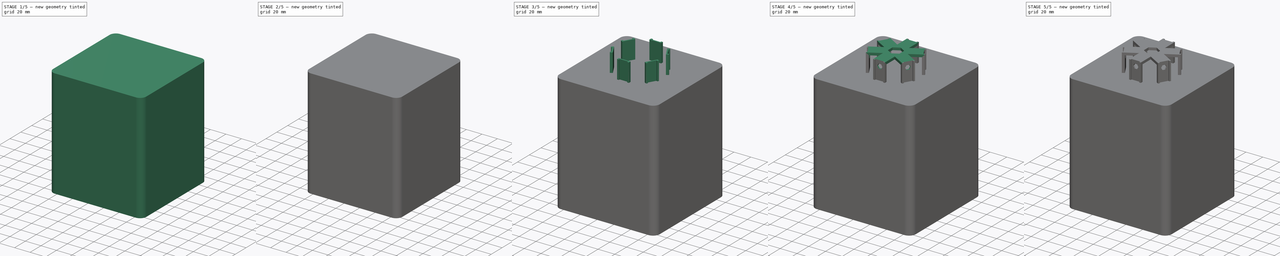
[diagram: build sequence overview — one tinted view per stage of 5, left to right]
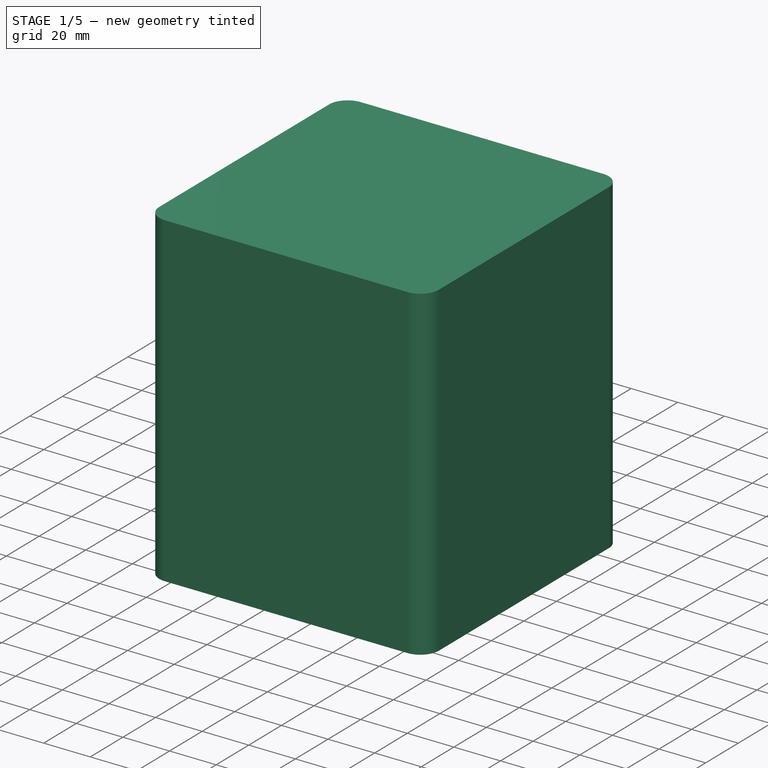
[diagram: stage 1 of 5 — iso view after this stage's code; geometry added in this stage tinted green]
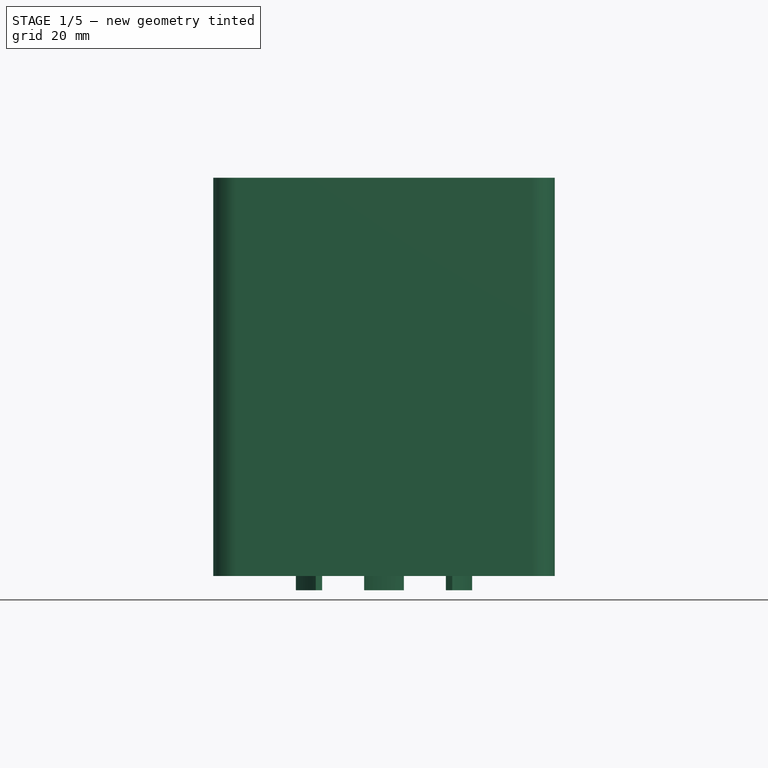
[diagram: stage 1 of 5 — front view after this stage's code; geometry added in this stage tinted green]
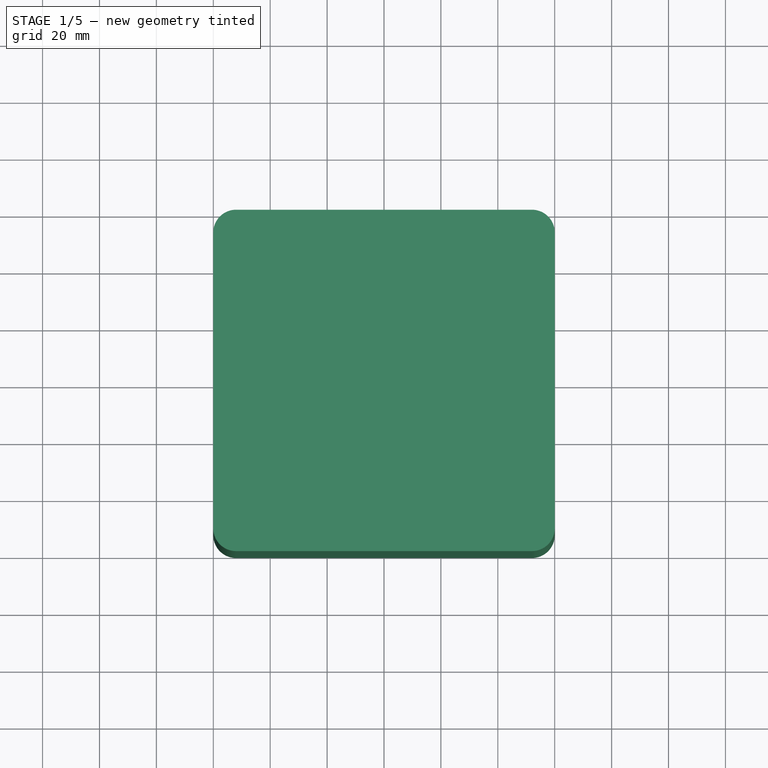
[diagram: stage 1 of 5 — top view after this stage's code; geometry added in this stage tinted green]
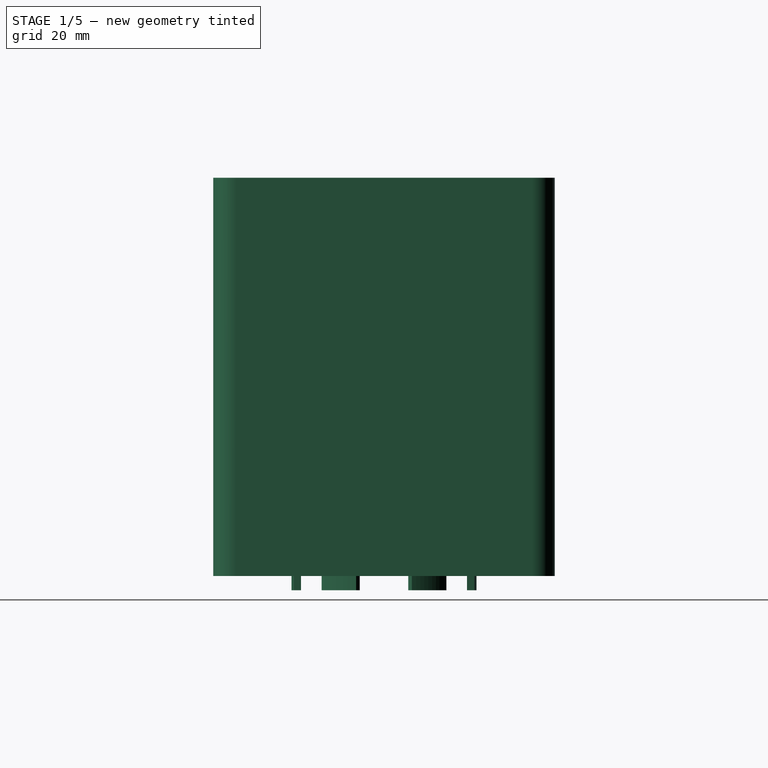
[diagram: stage 1 of 5 — right view after this stage's code; geometry added in this stage tinted green]
FCSTD DOCUMENT  (FreeCAD 1.0R39319 (Git))
Label: RGBLamp
License: All rights reserved
LicenseURL: https://en.wikipedia.org/wiki/All_rights_reserved
objects: Sketcher::SketchObject×46, PartDesign::Pad×23, PartDesign::Pocket×19, PartDesign::PolarPattern×13, PartDesign::Body×9, App::Part×9, PartDesign::Chamfer×5, PartDesign::Thickness×3, Spreadsheet::Sheet×1, PartDesign::Plane×1, PartDesign::SubtractivePipe×1
note: 281 computed .brp shape members not serialized (recipe doc carries the construction recipe); baked Part::Feature solids carry a one-line shape summary decoded from their .brp

FEATURE [PartDesign::Body] Body001
  AllowCompound = false
  Group = -> [Sketch003,Pad002,Sketch004,Pad003,Chamfer005]
  Origin = -> Origin002
  Placement = pos=(1.3,-51.8,-37.8) rot=(0,0,1;0rad)
  Tip = -> Chamfer005
FEATURE [App::Part] Part001  label="Button"
  Group = -> [Body001]
  Origin = -> Origin003
  Placement = pos=(0,0,0.6) rot=(0,0,1;0rad)
FEATURE [Sketcher::SketchObject] Sketch033
  ArcFitTolerance = 1e-06
  AttachmentSupport = -> [XY_Plane009]
  FullyConstrained = true
  MakeInternals = false
  MapMode = 5
  sketch-geometry (12):
    g0: LineSegment StartX=-60 StartY=52 StartZ=0 EndX=-60 EndY=-52 EndZ=0
    g1: LineSegment StartX=-52 StartY=-60 StartZ=0 EndX=52 EndY=-60 EndZ=0
    g2: LineSegment StartX=60 StartY=-52 StartZ=0 EndX=60 EndY=52 EndZ=0
    g3: LineSegment StartX=52 StartY=60 StartZ=0 EndX=-52 EndY=60 EndZ=0
    g4: ArcOfCircle CenterX=-52 CenterY=52 CenterZ=0 NormalX=0 NormalY=0 NormalZ=1 AngleXU=0 Radius=8 StartAngle=1.5708 EndAngle=3.14159
    g5: GeomPoint [constr] X=-60 Y=60 Z=0
    g6: ArcOfCircle CenterX=52 CenterY=52 CenterZ=0 NormalX=0 NormalY=0 NormalZ=1 AngleXU=0 Radius=8 StartAngle=0 EndAngle=1.5708
    g7: GeomPoint [constr] X=60 Y=60 Z=0
    g8: ArcOfCircle CenterX=52 CenterY=-52 CenterZ=0 NormalX=0 NormalY=0 NormalZ=1 AngleXU=0 Radius=8 StartAngle=4.71239 EndAngle=6.28319
    g9: GeomPoint [constr] X=60 Y=-60 Z=0
    g10: ArcOfCircle CenterX=-52 CenterY=-52 CenterZ=0 NormalX=0 NormalY=0 NormalZ=1 AngleXU=0 Radius=8 StartAngle=3.14159 EndAngle=4.71239
    g11: GeomPoint [constr] X=-60 Y=-60 Z=0
  constraints (27):
    c: Vertical(g0)
    c: Vertical(g2)
    c: Horizontal(g1)
    c: Horizontal(g3)
    c: Distance(g5,g7) = 120
    c: Distance(g11,g5) = 120
    c: Symmetric(g11,g7,g-1)
    c: PointOnObject(g5,g3)
    c: PointOnObject(g5,g0)
    c: Tangent(g3,g4) = -1.5708
    c: Tangent(g0,g4) = -1.5708
    c: Radius(g4) = 8
    c: PointOnObject(g7,g3)
    c: PointOnObject(g7,g2)
    c: Tangent(g3,g6) = -1.5708
    c: Tangent(g2,g6) = -1.5708
    c: PointOnObject(g9,g2)
    c: PointOnObject(g9,g1)
    c: Tangent(g2,g8) = -1.5708
    c: Tangent(g1,g8) = -1.5708
    c: PointOnObject(g11,g0)
    c: PointOnObject(g11,g1)
    c: Tangent(g0,g10) = -1.5708
    c: Tangent(g1,g10) = -1.5708
    c: Equal(g4,g6)
    c: Equal(g6,g8)
    c: Equal(g8,g10)
FEATURE [Sketcher::SketchObject] Sketch034
  ArcFitTolerance = 1e-06
  AttachmentSupport = -> [YZ_Plane009]
  FullyConstrained = true
  MakeInternals = false
  MapMode = 5
  Placement = pos=(0,0,0) rot=(0.57735,0.57735,0.57735;2.0944rad)
  sketch-geometry (4):
    g0: LineSegment StartX=-60 StartY=0 StartZ=0 EndX=-60 EndY=95 EndZ=0
    g1: LineSegment StartX=-55 StartY=100 StartZ=0 EndX=0 EndY=100 EndZ=0
    g2: ArcOfCircle CenterX=-55 CenterY=95 CenterZ=0 NormalX=0 NormalY=0 NormalZ=1 AngleXU=0 Radius=5 StartAngle=1.5708 EndAngle=3.14159
    g3: GeomPoint [constr] X=-60 Y=100 Z=0
  constraints (11):
    c: PointOnObject(g0,g-1)
    c: Vertical(g0)
    c: PointOnObject(g1,g-2)
    c: Horizontal(g1)
    c: DistanceY(g0,g3) = 100
    c: PointOnObject(g3,g0)
    c: PointOnObject(g3,g1)
    c: Tangent(g0,g2) = 1.5708
    c: Tangent(g1,g2) = 1.5708
    c: Radius(g2) = 5
    c: DistanceX(g0,g-1) = 60
FEATURE [PartDesign::Body] Body004
  AllowCompound = false
  Group = -> [Sketch033,Sketch034]
  Origin = -> Origin009
  Placement = pos=(0,0,54.8) rot=(0,0,1;0rad)
FEATURE [App::Part] Part004  label="LightCover"
  Group = -> [Body004]
  Origin = -> Origin008
FEATURE [Sketcher::SketchObject] Sketch035
  ArcFitTolerance = 1e-06
  AttachmentSupport = -> [XY_Plane011]
  FullyConstrained = true
  MakeInternals = false
  MapMode = 5
  sketch-geometry (12):
    g0: LineSegment StartX=-60 StartY=52 StartZ=0 EndX=-60 EndY=-52 EndZ=0
    g1: LineSegment StartX=-52 StartY=-60 StartZ=0 EndX=52 EndY=-60 EndZ=0
    g2: LineSegment StartX=60 StartY=-52 StartZ=0 EndX=60 EndY=52 EndZ=0
    g3: LineSegment StartX=52 StartY=60 StartZ=0 EndX=-52 EndY=60 EndZ=0
    g4: ArcOfCircle CenterX=-52 CenterY=52 CenterZ=0 NormalX=0 NormalY=0 NormalZ=1 AngleXU=0 Radius=8 StartAngle=1.5708 EndAngle=3.14159
    g5: GeomPoint [constr] X=-60 Y=60 Z=0
    g6: ArcOfCircle CenterX=52 CenterY=52 CenterZ=0 NormalX=0 NormalY=0 NormalZ=1 AngleXU=0 Radius=8 StartAngle=4e-16 EndAngle=1.5708
    g7: GeomPoint [constr] X=60 Y=60 Z=0
    g8: ArcOfCircle CenterX=52 CenterY=-52 CenterZ=0 NormalX=0 NormalY=0 NormalZ=1 AngleXU=0 Radius=8 StartAngle=4.71239 EndAngle=6.28319
    g9: GeomPoint [constr] X=60 Y=-60 Z=0
    g10: ArcOfCircle CenterX=-52 CenterY=-52 CenterZ=0 NormalX=0 NormalY=0 NormalZ=1 AngleXU=0 Radius=8 StartAngle=3.14159 EndAngle=4.71239
    g11: GeomPoint [constr] X=-60 Y=-60 Z=0
  constraints (27):
    c: Vertical(g0)
    c: Vertical(g2)
    c: Horizontal(g1)
    c: Horizontal(g3)
    c: Distance(g5,g7) = 120
    c: Distance(g11,g5) = 120
    c: Symmetric(g5,g9,g-1)
    c: PointOnObject(g5,g3)
    c: PointOnObject(g5,g0)
    c: Tangent(g3,g4) = -1.5708
    c: Tangent(g0,g4) = -1.5708
    c: PointOnObject(g7,g3)
    c: PointOnObject(g7,g2)
    c: Tangent(g3,g6) = -1.5708
    c: Tangent(g2,g6) = -1.5708
    c: PointOnObject(g9,g2)
    c: PointOnObject(g9,g1)
    c: Tangent(g2,g8) = -1.5708
    c: Tangent(g1,g8) = -1.5708
    c: PointOnObject(g11,g0)
    c: PointOnObject(g11,g1)
    c: Tangent(g0,g10) = -1.5708
    c: Tangent(g1,g10) = -1.5708
    c: Equal(g4,g6)
    c: Equal(g6,g10)
    c: Equal(g10,g8)
    c: Radius(g4) = 8
FEATURE [PartDesign::Pad] Pad016
  Direction = (0,0,1)
  Length = 140
  Length2 = 10
  Profile = -> Sketch035
  ReferenceAxis = -> Sketch035 [N_Axis]
  Refine = true
  Suppressed = false
  Type = 0
FEATURE [Sketcher::SketchObject] Sketch036
  ArcFitTolerance = 1e-06
  AttachmentSupport = -> [XY_Plane013]
  FullyConstrained = true
  MakeInternals = false
  MapMode = 5
  sketch-geometry (12):
    g0: LineSegment StartX=-59 StartY=52 StartZ=0 EndX=-59 EndY=-52 EndZ=0
    g1: LineSegment StartX=-52 StartY=-59 StartZ=0 EndX=52 EndY=-59 EndZ=0
    g2: LineSegment StartX=59 StartY=-52 StartZ=0 EndX=59 EndY=52 EndZ=0
    g3: LineSegment StartX=52 StartY=59 StartZ=0 EndX=-52 EndY=59 EndZ=0
    g4: ArcOfCircle CenterX=-52 CenterY=52 CenterZ=0 NormalX=0 NormalY=0 NormalZ=1 AngleXU=0 Radius=7 StartAngle=1.5708 EndAngle=3.14159
    g5: GeomPoint [constr] X=-59 Y=59 Z=0
    g6: ArcOfCircle CenterX=52 CenterY=52 CenterZ=0 NormalX=0 NormalY=0 NormalZ=1 AngleXU=0 Radius=7 StartAngle=0 EndAngle=1.5708
    g7: GeomPoint [constr] X=59 Y=59 Z=0
    g8: ArcOfCircle CenterX=52 CenterY=-52 CenterZ=0 NormalX=0 NormalY=0 NormalZ=1 AngleXU=0 Radius=7 StartAngle=4.71239 EndAngle=6.28319
    g9: GeomPoint [constr] X=59 Y=-59 Z=0
    g10: ArcOfCircle CenterX=-52 CenterY=-52 CenterZ=0 NormalX=0 NormalY=0 NormalZ=1 AngleXU=0 Radius=7 StartAngle=3.14159 EndAngle=4.71239
    g11: GeomPoint [constr] X=-59 Y=-59 Z=0
  constraints (27):
    c: Vertical(g0)
    c: Vertical(g2)
    c: Horizontal(g1)
    c: Horizontal(g3)
    c: Distance(g5,g7) = 118
    c: Distance(g11,g5) = 118
    c: Symmetric(g5,g9,g-1)
    c: PointOnObject(g5,g0)
    c: PointOnObject(g5,g3)
    c: Tangent(g0,g4) = -1.5708
    c: Tangent(g3,g4) = -1.5708
    c: PointOnObject(g7,g3)
    c: PointOnObject(g7,g2)
    c: Tangent(g3,g6) = -1.5708
    c: Tangent(g2,g6) = -1.5708
    c: PointOnObject(g9,g2)
    c: PointOnObject(g9,g1)
    c: Tangent(g2,g8) = -1.5708
    c: Tangent(g1,g8) = -1.5708
    c: PointOnObject(g11,g0)
    c: PointOnObject(g11,g1)
    c: Tangent(g0,g10) = -1.5708
    c: Tangent(g1,g10) = -1.5708
    c: Equal(g4,g6)
    c: Equal(g6,g8)
    c: Equal(g8,g10)
    c: Radius(g4) = 7
FEATURE [PartDesign::Pad] Pad017
  Direction = (0,0,1)
  Length = 4
  Length2 = 10
  Profile = -> Sketch036
  ReferenceAxis = -> Sketch036 [N_Axis]
  Refine = true
  Suppressed = false
  Type = 0
FEATURE [Sketcher::SketchObject] Sketch037
  ArcFitTolerance = 1e-06
  AttachmentSupport = -> [XY_Plane013]
  ExternalGeometry = -> [Pad017]
  FullyConstrained = true
  MakeInternals = false
  MapMode = 5
  sketch-geometry (1):
    g0: Circle CenterX=-43.9 CenterY=43.9 CenterZ=0 NormalX=0 NormalY=0 NormalZ=1 AngleXU=0 Radius=5.1
  constraints (3):
    c: Diameter(g0) = 10.2
    c: DistanceX(g-3,g0) = 8.1
    c: DistanceY(g0,g-3) = 8.1
FEATURE [PartDesign::Pocket] Pocket015
  BaseFeature = -> Pad017
  Direction = (0,0,-1)
  Length = 5
  Length2 = 5
  Profile = -> Sketch037
  ReferenceAxis = -> Sketch037 [N_Axis]
  Refine = true
  Reversed = true
  Suppressed = false
  Type = 0
FEATURE [PartDesign::Body] Body006
  AllowCompound = false
  Group = -> [Sketch036,Pad017,Sketch037,Pocket015,PolarPattern010,Sketch038,Pocket016,Sketch039,Pocket017,PolarPattern011]
  Origin = -> Origin013
  Placement = pos=(0,0,42.1) rot=(0,0,1;0rad)
  Tip = -> PolarPattern011
FEATURE [App::Part] Part006  label="HolderRing"
  Group = -> [Body006]
  Origin = -> Origin012
FEATURE [Sketcher::SketchObject] Sketch040
  ArcFitTolerance = 1e-06
  AttachmentSupport = -> [XY_Plane015]
  FullyConstrained = false
  MakeInternals = false
  MapMode = 5
  sketch-geometry (8):
    g0: LineSegment StartX=-39.008 StartY=-48.9864 StartZ=0 EndX=-44.008 EndY=-48.9864 EndZ=0
    g1: LineSegment StartX=-44.008 StartY=-48.9864 StartZ=0 EndX=-44.008 EndY=-53.9864 EndZ=0
    g2: LineSegment StartX=-44.008 StartY=-53.9864 StartZ=0 EndX=-38.9749 EndY=-53.9864 EndZ=0
    g3: LineSegment StartX=-38.9749 StartY=-53.9864 StartZ=0 EndX=-38.9749 EndY=-55.9864 EndZ=0
    g4: LineSegment StartX=-38.9749 StartY=-55.9864 StartZ=0 EndX=-46.508 EndY=-55.9864 EndZ=0
    g5: LineSegment StartX=-46.508 StartY=-55.9864 StartZ=0 EndX=-46.508 EndY=-46.9864 EndZ=0
    g6: LineSegment StartX=-46.508 StartY=-46.9864 StartZ=0 EndX=-39.008 EndY=-46.9864 EndZ=0
    g7: LineSegment StartX=-39.008 StartY=-46.9864 StartZ=0 EndX=-39.008 EndY=-48.9864 EndZ=0
  constraints (21):
    c: Horizontal(g0)
    c: Coincident(g0,g1)
    c: Vertical(g1)
    c: Coincident(g1,g2)
    c: Horizontal(g2)
    c: Coincident(g2,g3)
    c: Vertical(g3)
    c: Coincident(g3,g4)
    c: Horizontal(g4)
    c: Coincident(g4,g5)
    c: Vertical(g5)
    c: Coincident(g5,g6)
    c: Horizontal(g6)
    c: Coincident(g6,g7)
    c: Coincident(g7,g0)
    c: Vertical(g7)
    c: DistanceX(g0,g0) = 5
    c: DistanceY(g1,g1) = 5
    c: DistanceX(g6,g6) = 7.5
    c: DistanceY(g7,g7) = 2
    c: DistanceY(g3,g3) = 2
FEATURE [PartDesign::Pad] Pad018
  Direction = (0,0,1)
  Length = 5
  Length2 = 10
  Profile = -> Sketch040
  ReferenceAxis = -> Sketch040 [N_Axis]
  Refine = true
  Suppressed = false
  Type = 0
FEATURE [Sketcher::SketchObject] Sketch041
  ArcFitTolerance = 1e-06
  AttachmentSupport = -> [Pad018]
  ExternalGeometry = -> [Pad018]
  FullyConstrained = true
  MakeInternals = false
  MapMode = 5
  Placement = pos=(0,0,5) rot=(0,0,1;0rad)
  sketch-geometry (8):
    g0: LineSegment StartX=-39.008 StartY=-46.9864 StartZ=0 EndX=-39.008 EndY=-50.5864 EndZ=0
    g1: LineSegment StartX=-39.008 StartY=-50.5864 StartZ=0 EndX=-42.008 EndY=-50.5864 EndZ=0
    g2: LineSegment StartX=-42.008 StartY=-50.5864 StartZ=0 EndX=-42.008 EndY=-52.3864 EndZ=0
    g3: LineSegment StartX=-42.008 StartY=-52.3864 StartZ=0 EndX=-38.9749 EndY=-52.3864 EndZ=0
    g4: LineSegment StartX=-38.9749 StartY=-52.3864 StartZ=0 EndX=-38.9749 EndY=-55.9864 EndZ=0
    g5: LineSegment StartX=-38.9749 StartY=-55.9864 StartZ=0 EndX=-46.508 EndY=-55.9864 EndZ=0
    g6: LineSegment StartX=-46.508 StartY=-55.9864 StartZ=0 EndX=-46.508 EndY=-46.9864 EndZ=0
    g7: LineSegment StartX=-46.508 StartY=-46.9864 StartZ=0 EndX=-39.008 EndY=-46.9864 EndZ=0
  constraints (20):
    c: Coincident(g-3,g0)
    c: Vertical(g0)
    c: Coincident(g0,g1)
    c: Horizontal(g1)
    c: Coincident(g1,g2)
    c: Vertical(g2)
    c: Coincident(g2,g3)
    c: Horizontal(g3)
    c: Coincident(g3,g4)
    c: Coincident(g4,g-5)
    c: Vertical(g4)
    c: Coincident(g4,g5)
    c: Coincident(g5,g-5)
    c: Coincident(g5,g6)
    c: Coincident(g6,g-4)
    c: Coincident(g6,g7)
    c: Coincident(g7,g0)
    c: DistanceY(g2,g2) = 1.8
    c: DistanceX(g1,g1) = 3
    c: DistanceY(g4,g4) = 3.6
FEATURE [PartDesign::Pad] Pad019
  BaseFeature = -> Pad018
  Direction = (0,0,1)
  Length = 15
  Length2 = 10
  Profile = -> Sketch041
  ReferenceAxis = -> Sketch041 [N_Axis]
  Refine = true
  Suppressed = false
  Type = 0
FEATURE [Sketcher::SketchObject] Sketch042
  ArcFitTolerance = 1e-06
  AttachmentSupport = -> [Pad019]
  ExternalGeometry = -> [Pad019]
  FullyConstrained = true
  MakeInternals = false
  MapMode = 5
  Placement = pos=(0,0,20) rot=(0,0,1;0rad)
  sketch-geometry (4):
    g0: LineSegment StartX=-46.508 StartY=-46.9864 StartZ=0 EndX=-46.508 EndY=-55.9864 EndZ=0
    g1: LineSegment StartX=-46.508 StartY=-55.9864 StartZ=0 EndX=-38.9749 EndY=-55.9864 EndZ=0
    g2: LineSegment StartX=-38.9749 StartY=-55.9864 StartZ=0 EndX=-38.9749 EndY=-46.9864 EndZ=0
    g3: LineSegment StartX=-38.9749 StartY=-46.9864 StartZ=0 EndX=-46.508 EndY=-46.9864 EndZ=0
  constraints (10):
    c: Coincident(g0,g1)
    c: Coincident(g1,g2)
    c: Coincident(g2,g3)
    c: Coincident(g3,g0)
    c: Vertical(g0)
    c: Vertical(g2)
    c: Horizontal(g1)
    c: Horizontal(g3)
    c: Coincident(g0,g-3)
    c: Coincident(g1,g-4)
FEATURE [PartDesign::Pad] Pad020
  BaseFeature = -> Pad019
  Direction = (0,0,1)
  Length = 2
  Length2 = 10
  Profile = -> Sketch042
  ReferenceAxis = -> Sketch042 [N_Axis]
  Refine = true
  Suppressed = false
  Type = 0
FEATURE [Sketcher::SketchObject] Sketch043
  ArcFitTolerance = 1e-06
  AttachmentSupport = -> [Pad020]
  ExternalGeometry = -> [Pad020]
  FullyConstrained = true
  MakeInternals = false
  MapMode = 5
  Placement = pos=(0,0,22) rot=(0,0,1;0rad)
  sketch-geometry (4):
    g0: LineSegment StartX=-46.508 StartY=-55.9864 StartZ=0 EndX=-46.508 EndY=-57.9864 EndZ=0
    g1: LineSegment StartX=-46.508 StartY=-57.9864 StartZ=0 EndX=-39.008 EndY=-57.9864 EndZ=0
    g2: LineSegment StartX=-39.008 StartY=-57.9864 StartZ=0 EndX=-39.008 EndY=-55.9864 EndZ=0
    g3: LineSegment StartX=-39.008 StartY=-55.9864 StartZ=0 EndX=-46.508 EndY=-55.9864 EndZ=0
  constraints (11):
    c: Coincident(g0,g1)
    c: Coincident(g1,g2)
    c: Coincident(g2,g3)
    c: Coincident(g3,g0)
    c: Vertical(g0)
    c: Vertical(g2)
    c: Horizontal(g1)
    c: Horizontal(g3)
    c: Distance(g0,g2) = 7.5
    c: Distance(g1,g3) = 2
    c: Coincident(g0,g-3)
FEATURE [PartDesign::Pad] Pad021
  BaseFeature = -> Pad020
  Direction = (0,0,1)
  Length = 15
  Length2 = 10
  Profile = -> Sketch043
  ReferenceAxis = -> Sketch043 [N_Axis]
  Refine = true
  Reversed = true
  Suppressed = false
  Type = 0
FEATURE [PartDesign::Body] Body007
  AllowCompound = false
  Group = -> [Sketch040,Pad018,Sketch041,Pad019,Sketch042,Pad020,Sketch043,Pad021]
  Origin = -> Origin015
  Tip = -> Pad021
FEATURE [App::Part] Part007  label="ButtonsHolder"
  Group = -> [Body007]
  Origin = -> Origin014
  Placement = pos=(0,0,2.1) rot=(0,0,1;0rad)
FEATURE [Sketcher::SketchObject] Sketch044
  ArcFitTolerance = 1e-06
  AttachmentSupport = -> [XY_Plane017]
  FullyConstrained = false
  MakeInternals = false
  MapMode = 5
  sketch-geometry (1):
    g0: Circle CenterX=0 CenterY=0 CenterZ=0 NormalX=0 NormalY=0 NormalZ=1 AngleXU=0 Radius=32.5
  constraints (1):
    c: Diameter(g0) = 65
FEATURE [PartDesign::Pad] Pad022
  Direction = (0,0,1)
  Length = 10
  Length2 = 10
  Profile = -> Sketch044
  ReferenceAxis = -> Sketch044 [N_Axis]
  Refine = true
  Suppressed = false
  Type = 0
FEATURE [Sketcher::SketchObject] Sketch045
  ArcFitTolerance = 1e-06
  AttachmentSupport = -> [Pad022]
  FullyConstrained = false
  MakeInternals = false
  MapMode = 5
  Placement = pos=(0,0,0) rot=(1,0,0;3.14159rad)
  sketch-geometry (4):
    g0: LineSegment StartX=-7 StartY=31.7372 StartZ=0 EndX=-7 EndY=29.1719 EndZ=0
    g1: LineSegment StartX=7 StartY=29.1719 StartZ=0 EndX=7 EndY=31.7372 EndZ=0
    g2: ArcOfCircle CenterX=0 CenterY=0 CenterZ=0 NormalX=0 NormalY=0 NormalZ=1 AngleXU=0 Radius=30 StartAngle=1.33529 EndAngle=1.8063
    g3: ArcOfCircle CenterX=0 CenterY=0 CenterZ=0 NormalX=0 NormalY=0 NormalZ=1 AngleXU=0 Radius=32.5 StartAngle=1.35371 EndAngle=1.78788
  constraints (10):
    c: Vertical(g0)
    c: Vertical(g1)
    c: Diameter(g2) = 60
    c: Coincident(g2,g-1)
    c: Diameter(g3) = 65
    c: Coincident(g3,g2)
    c: Coincident(g0,g3)
    c: Coincident(g1,g3)
    c: Coincident(g1,g2)
    c: Coincident(g0,g2)
FEATURE [PartDesign::Thickness] Thickness002
  Base = -> Pad022 [Face2]
  BaseFeature = -> Pad022
  Intersection = false
  Join = 0
  Mode = 0
  Refine = true
  Reversed = true
  SupportTransform = false
  Suppressed = false
  Value = 2.4
FEATURE [PartDesign::Pad] Pad023
  BaseFeature = -> Thickness002
  Direction = (0,0,-1)
  Length = 5
  Length2 = 10
  Profile = -> Sketch045
  ReferenceAxis = -> Sketch045 [N_Axis]
  Refine = true
  Suppressed = false
  Type = 0
FEATURE [PartDesign::PolarPattern] PolarPattern012
  Angle = 360
  Axis = -> Sketch045 [N_Axis]
  BaseFeature = -> Pad023
  Mode = 0
  Occurrences = 6
  Offset = 120
  Originals = -> [Pad023]
  Refine = true
  Suppressed = false
  TransformMode = 0
FEATURE [PartDesign::Body] Body008
  AllowCompound = false
  Group = -> [Sketch044,Pad022,Sketch045,Thickness002,Pad023,PolarPattern012]
  Origin = -> Origin017
  Tip = -> PolarPattern012
FEATURE [App::Part] Part008  label="Lights_Base_Cap"
  Group = -> [Body008]
  Origin = -> Origin016
  Placement = pos=(0,0,140.1) rot=(0,0,1;0rad)
FEATURE [PartDesign::Thickness] Thickness003
  Base = -> Pad016 [Face9]
  BaseFeature = -> Pad016
  Intersection = false
  Join = 0
  Mode = 0
  Refine = true
  Reversed = true
  SupportTransform = false
  Suppressed = false
  Value = 1.5
FEATURE [Sketcher::SketchObject] Sketch046
  ArcFitTolerance = 1e-06
  AttachmentSupport = -> [Thickness003]
  FullyConstrained = true
  MakeInternals = false
  MapMode = 5
  Placement = pos=(0,0,0) rot=(1,0,0;3.14159rad)
  sketch-geometry (12):
    g0: LineSegment StartX=-52 StartY=-59 StartZ=0 EndX=52 EndY=-59 EndZ=0
    g1: LineSegment StartX=59 StartY=-52 StartZ=0 EndX=59 EndY=52 EndZ=0
    g2: LineSegment StartX=52 StartY=59 StartZ=0 EndX=-52 EndY=59 EndZ=0
    g3: LineSegment StartX=-59 StartY=52 StartZ=0 EndX=-59 EndY=-52 EndZ=0
    g4: ArcOfCircle CenterX=-52 CenterY=52 CenterZ=0 NormalX=0 NormalY=0 NormalZ=1 AngleXU=0 Radius=7 StartAngle=1.5708 EndAngle=3.14159
    g5: GeomPoint [constr] X=-59 Y=59 Z=0
    g6: ArcOfCircle CenterX=52 CenterY=52 CenterZ=0 NormalX=0 NormalY=0 NormalZ=1 AngleXU=0 Radius=7 StartAngle=0 EndAngle=1.5708
    g7: GeomPoint [constr] X=59 Y=59 Z=0
    g8: ArcOfCircle CenterX=52 CenterY=-52 CenterZ=0 NormalX=0 NormalY=0 NormalZ=1 AngleXU=0 Radius=7 StartAngle=4.71239 EndAngle=6.28319
    g9: GeomPoint [constr] X=59 Y=-59 Z=0
    g10: ArcOfCircle CenterX=-52 CenterY=-52 CenterZ=0 NormalX=0 NormalY=0 NormalZ=1 AngleXU=0 Radius=7 StartAngle=3.14159 EndAngle=4.71239
    g11: GeomPoint [constr] X=-59 Y=-59 Z=0
  constraints (27):
    c: Horizontal(g0)
    c: Horizontal(g2)
    c: Vertical(g1)
    c: Vertical(g3)
    c: Distance(g9,g11) = 118
    c: Distance(g11,g5) = 118
    c: Symmetric(g9,g5,g-1)
    c: PointOnObject(g5,g2)
    c: PointOnObject(g5,g3)
    c: Tangent(g2,g4) = -1.5708
    c: Tangent(g3,g4) = -1.5708
    c: PointOnObject(g7,g2)
    c: PointOnObject(g7,g1)
    c: Tangent(g2,g6) = -1.5708
    c: Tangent(g1,g6) = -1.5708
    c: Radius(g4) = 7
    c: PointOnObject(g9,g0)
    c: PointOnObject(g9,g1)
    c: Tangent(g0,g8) = -1.5708
    c: Tangent(g1,g8) = -1.5708
    c: PointOnObject(g11,g3)
    c: PointOnObject(g11,g0)
    c: Tangent(g3,g10) = -1.5708
    c: Tangent(g0,g10) = -1.5708
    c: Equal(g10,g8)
    c: Equal(g8,g6)
    c: Equal(g6,g4)
FEATURE [PartDesign::Pocket] Pocket018
  BaseFeature = -> Thickness003
  Direction = (0,0,1)
  Length = 5
  Length2 = 5
  Profile = -> Sketch046
  ReferenceAxis = -> Sketch046 [N_Axis]
  Refine = true
  Suppressed = false
  Type = 0
FEATURE [PartDesign::Body] Body005
  AllowCompound = false
  Group = -> [Sketch035,Pad016,Thickness003,Sketch046,Pocket018]
  Origin = -> Origin011
  Tip = -> Pocket018
FEATURE [App::Part] Part005  label="LightCoverSimple"
  Group = -> [Body005]
  Origin = -> Origin010
  Placement = pos=(0,0,41.5) rot=(0,0,1;0rad)
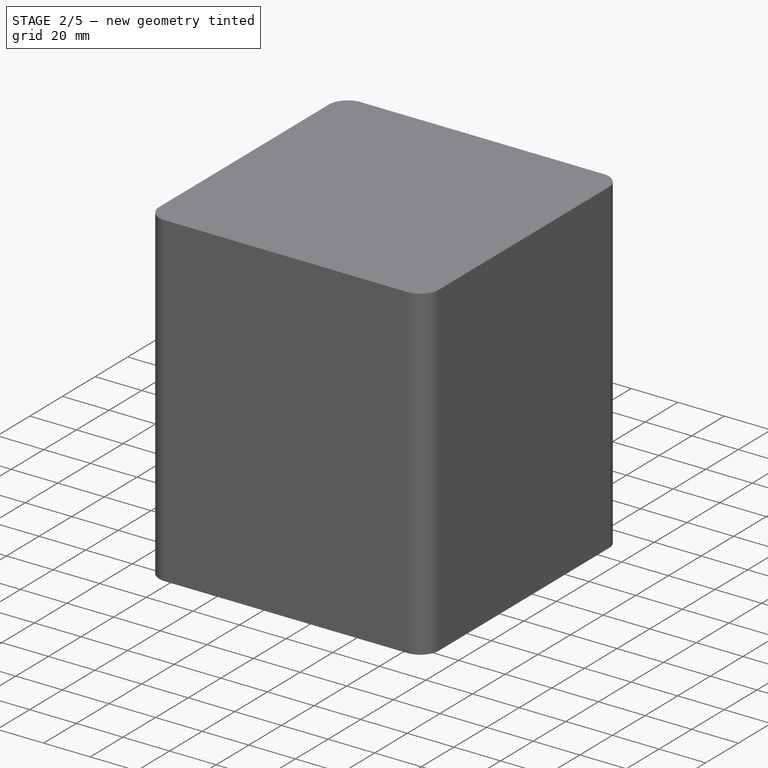
[diagram: stage 2 of 5 — iso view after this stage's code; geometry added in this stage tinted green]
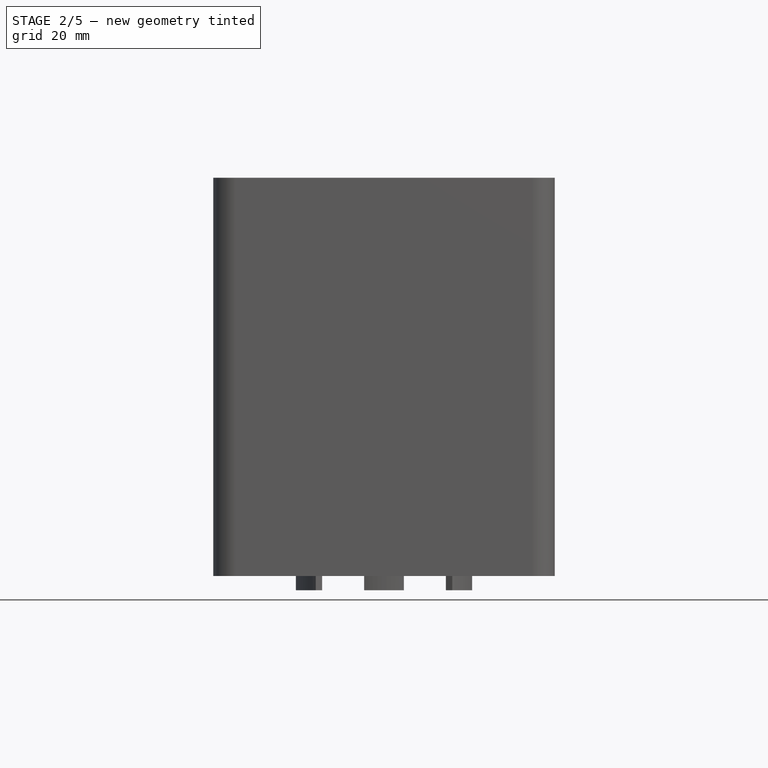
[diagram: stage 2 of 5 — front view after this stage's code; geometry added in this stage tinted green]
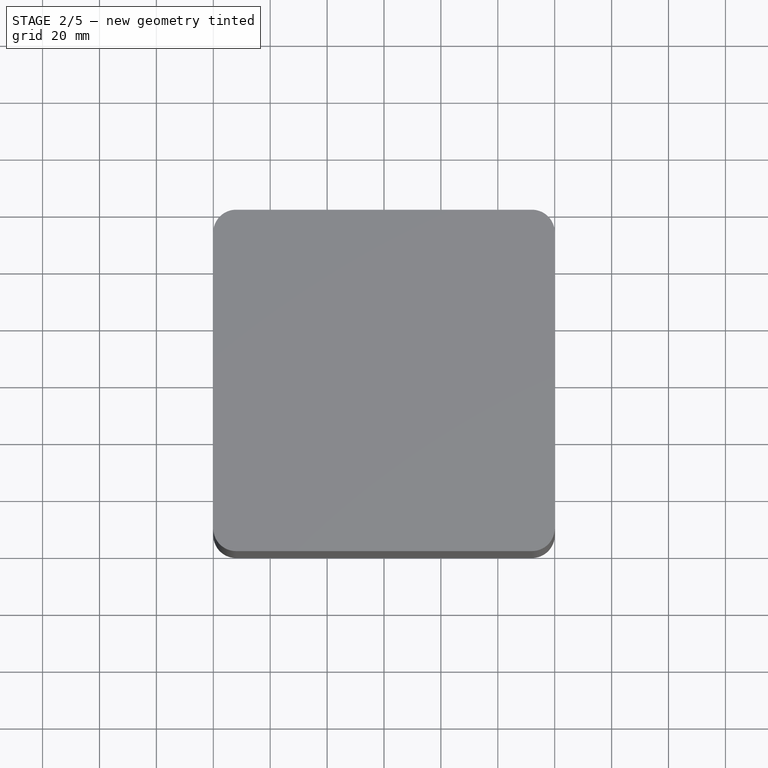
[diagram: stage 2 of 5 — top view after this stage's code; geometry added in this stage tinted green]
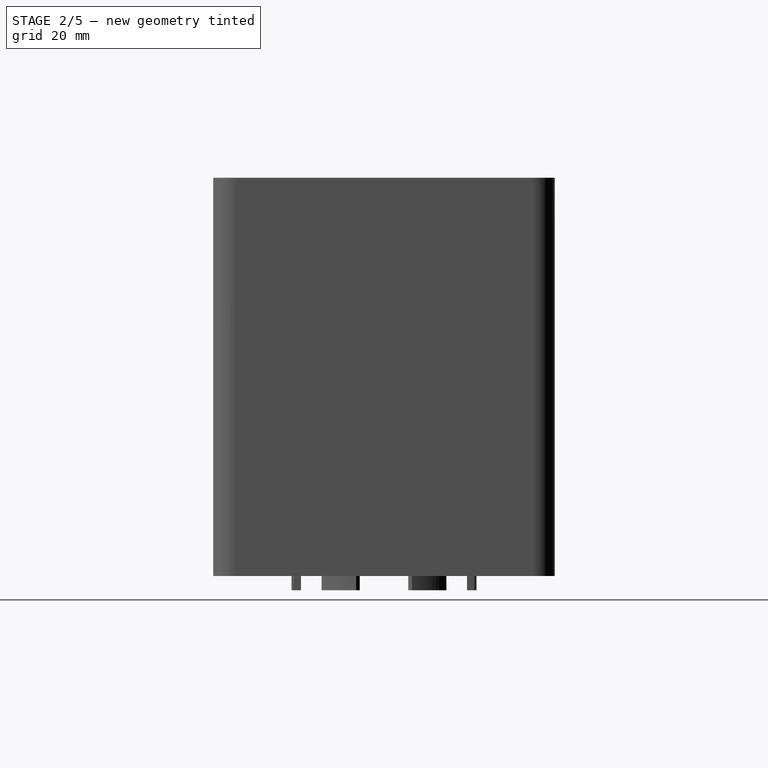
[diagram: stage 2 of 5 — right view after this stage's code; geometry added in this stage tinted green]
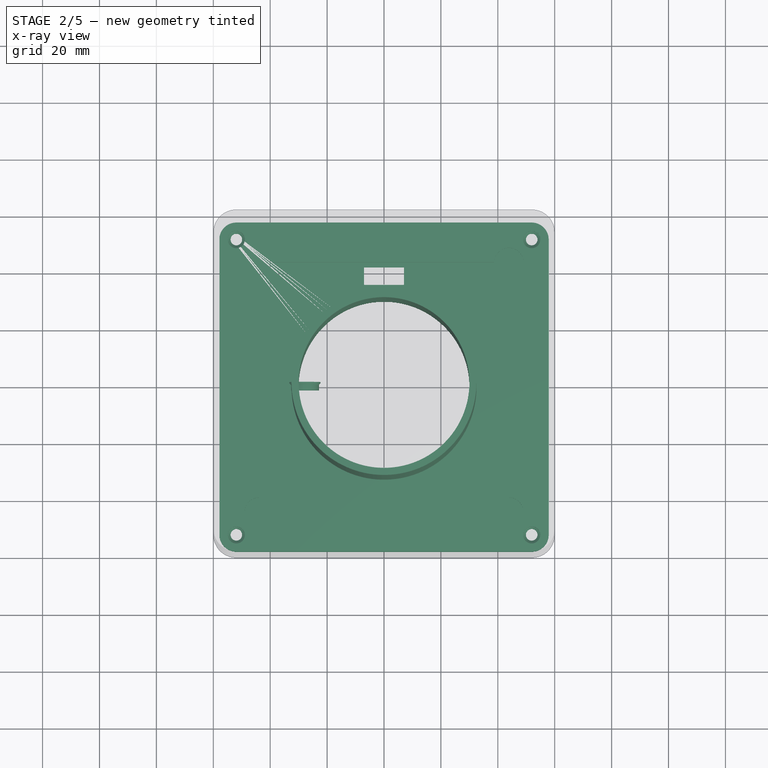
[diagram: stage 2 of 5 — x-ray composite at the top view; earlier geometry ghosted, this stage's added geometry solid]
FEATURE [Sketcher::SketchObject] Sketch003
  ArcFitTolerance = 1e-06
  AttachmentSupport = -> [XZ_Plane002]
  FullyConstrained = false
  MakeInternals = false
  MapMode = 5
  Placement = pos=(0,0,0) rot=(1,0,0;1.5708rad)
  sketch-geometry (1):
    g0: Circle CenterX=-27.765 CenterY=49.7699 CenterZ=0 NormalX=0 NormalY=0 NormalZ=1 AngleXU=0 Radius=4.9
  constraints (1):
    c: Diameter(g0) = 9.8
FEATURE [PartDesign::Pad] Pad002
  Direction = (0,-1,2e-16)
  Length = 2
  Length2 = 10
  Placement = pos=(0,0,0) rot=(1,0,0;1.5708rad)
  Profile = -> Sketch003
  ReferenceAxis = -> Sketch003 [N_Axis]
  Refine = true
  Suppressed = false
  Type = 0
FEATURE [Sketcher::SketchObject] Sketch004
  ArcFitTolerance = 1e-06
  AttachmentSupport = -> [Pad002]
  ExternalGeometry = -> [Pad002]
  FullyConstrained = true
  MakeInternals = false
  MapMode = 5
  Placement = pos=(0,1.1e-14,0) rot=(-1,0,0;1.5708rad)
  sketch-geometry (1):
    g0: Circle CenterX=-27.765 CenterY=-49.7699 CenterZ=0 NormalX=0 NormalY=0 NormalZ=1 AngleXU=0 Radius=5.5
  constraints (2):
    c: Diameter(g0) = 11
    c: Coincident(g0,g-3)
FEATURE [PartDesign::Pad] Pad003
  BaseFeature = -> Pad002
  Direction = (0,1,2e-16)
  Length = 1
  Length2 = 10
  Placement = pos=(0,0,0) rot=(1,0,0;1.5708rad)
  Profile = -> Sketch004
  ReferenceAxis = -> Sketch004 [N_Axis]
  Refine = true
  Suppressed = false
  Type = 0
FEATURE [PartDesign::Body] Body002
  AllowCompound = false
  Group = -> [Sketch014,Pad009,Sketch015,Pocket005,Sketch016,Pocket006,Sketch017,Pad010,PolarPattern001,Sketch018,Pocket007,PolarPattern002,Sketch019,Pad011,PolarPattern003,Sketch020,Pocket008,PolarPattern004,Sketch021,Pad012,Sketch022,Pocket009,PolarPattern005,DatumPlane,Sketch023,Sketch024,SubtractivePipe,PolarPattern006,Sketch025,Pocket010]
  Origin = -> Origin005
  Placement = pos=(0,0,61.6) rot=(0,0,1;0rad)
  Tip = -> Pocket010
FEATURE [App::Part] Part002  label="RGB_Lights (ignore)"
  Group = -> [Body002]
  Origin = -> Origin004
FEATURE [Sketcher::SketchObject] Sketch026
  ArcFitTolerance = 1e-06
  AttachmentSupport = -> [XY_Plane007]
  FullyConstrained = true
  MakeInternals = false
  MapMode = 5
  sketch-geometry (12):
    g0: LineSegment StartX=-51.9 StartY=-57.9 StartZ=0 EndX=51.9 EndY=-57.9 EndZ=0
    g1: LineSegment StartX=57.9 StartY=-51.9 StartZ=0 EndX=57.9 EndY=51.9 EndZ=0
    g2: LineSegment StartX=51.9 StartY=57.9 StartZ=0 EndX=-51.9 EndY=57.9 EndZ=0
    g3: LineSegment StartX=-57.9 StartY=51.9 StartZ=0 EndX=-57.9 EndY=-51.9 EndZ=0
    g4: ArcOfCircle CenterX=-51.9 CenterY=51.9 CenterZ=0 NormalX=0 NormalY=0 NormalZ=1 AngleXU=0 Radius=6 StartAngle=1.5708 EndAngle=3.14159
    g5: GeomPoint [constr] X=-57.9 Y=57.9 Z=0
    g6: ArcOfCircle CenterX=51.9 CenterY=51.9 CenterZ=0 NormalX=0 NormalY=0 NormalZ=1 AngleXU=0 Radius=6 StartAngle=2e-16 EndAngle=1.5708
    g7: GeomPoint [constr] X=57.9 Y=57.9 Z=0
    g8: ArcOfCircle CenterX=51.9 CenterY=-51.9 CenterZ=0 NormalX=0 NormalY=0 NormalZ=1 AngleXU=0 Radius=6 StartAngle=4.71239 EndAngle=6.28319
    g9: GeomPoint [constr] X=57.9 Y=-57.9 Z=0
    g10: ArcOfCircle CenterX=-51.9 CenterY=-51.9 CenterZ=0 NormalX=0 NormalY=0 NormalZ=1 AngleXU=0 Radius=6 StartAngle=3.14159 EndAngle=4.71239
    g11: GeomPoint [constr] X=-57.9 Y=-57.9 Z=0
  constraints (27):
    c: Horizontal(g0)
    c: Horizontal(g2)
    c: Vertical(g1)
    c: Vertical(g3)
    c: Distance(g9,g11) = 115.8
    c: Distance(g11,g5) = 115.8
    c: Symmetric(g5,g9,g-1)
    c: PointOnObject(g5,g3)
    c: PointOnObject(g5,g2)
    c: Tangent(g3,g4) = -1.5708
    c: Tangent(g2,g4) = -1.5708
    c: PointOnObject(g7,g2)
    c: PointOnObject(g7,g1)
    c: Tangent(g2,g6) = -1.5708
    c: Tangent(g1,g6) = -1.5708
    c: PointOnObject(g9,g1)
    c: PointOnObject(g9,g0)
    c: Tangent(g1,g8) = -1.5708
    c: Tangent(g0,g8) = -1.5708
    c: PointOnObject(g11,g3)
    c: PointOnObject(g11,g0)
    c: Tangent(g3,g10) = -1.5708
    c: Tangent(g0,g10) = -1.5708
    c: Equal(g4,g6)
    c: Equal(g6,g8)
    c: Equal(g8,g10)
    c: Radius(g4) = 6
FEATURE [PartDesign::Pad] Pad013
  Direction = (0,0,1)
  Length = 2
  Length2 = 10
  Profile = -> Sketch026
  ReferenceAxis = -> Sketch026 [N_Axis]
  Refine = true
  Suppressed = false
  Type = 0
FEATURE [Sketcher::SketchObject] Sketch027
  ArcFitTolerance = 1e-06
  AttachmentSupport = -> [Pad013]
  ExternalGeometry = -> [Pad013]
  FullyConstrained = false
  MakeInternals = false
  MapMode = 5
  Placement = pos=(0,0,2) rot=(0,0,1;0rad)
  sketch-geometry (4):
    g0: Circle CenterX=-51.9 CenterY=51.9 CenterZ=0 NormalX=0 NormalY=0 NormalZ=1 AngleXU=0 Radius=2
    g1: Circle CenterX=51.9 CenterY=51.9 CenterZ=0 NormalX=0 NormalY=0 NormalZ=1 AngleXU=0 Radius=2
    g2: Circle CenterX=51.9 CenterY=-51.9 CenterZ=0 NormalX=0 NormalY=0 NormalZ=1 AngleXU=0 Radius=2
    g3: Circle CenterX=-51.9 CenterY=-51.9 CenterZ=0 NormalX=0 NormalY=0 NormalZ=1 AngleXU=0 Radius=2
  constraints (7):
    c: Coincident(g1,g-4)
    c: Coincident(g2,g-6)
    c: Coincident(g3,g-5)
    c: Equal(g0,g1)
    c: Equal(g1,g2)
    c: Equal(g2,g3)
    c: Diameter(g0) = 4
FEATURE [PartDesign::Pocket] Pocket011
  BaseFeature = -> Pad013
  Direction = (0,0,-1)
  Length = 2
  Length2 = 5
  Profile = -> Sketch027
  ReferenceAxis = -> Sketch027 [N_Axis]
  Refine = true
  Suppressed = false
  Type = 0
FEATURE [PartDesign::Chamfer] Chamfer004
  Angle = 45
  Base = -> Pocket011 [Edge25,Edge27,Edge28,Edge26]
  BaseFeature = -> Pocket011
  ChamferType = 0
  FlipDirection = false
  Refine = true
  Size = 1
  Size2 = 1
  SupportTransform = false
  Suppressed = false
  UseAllEdges = false
FEATURE [Sketcher::SketchObject] Sketch028
  ArcFitTolerance = 1e-06
  AttachmentSupport = -> [Chamfer004]
  FullyConstrained = true
  MakeInternals = false
  MapMode = 5
  Placement = pos=(0,0,2) rot=(0,0,1;0rad)
  sketch-geometry (1):
    g0: Circle CenterX=0 CenterY=0 CenterZ=0 NormalX=0 NormalY=0 NormalZ=1 AngleXU=0 Radius=30
  constraints (2):
    c: Diameter(g0) = 60
    c: Coincident(g0,g-1)
FEATURE [PartDesign::Pocket] Pocket012
  BaseFeature = -> Chamfer004
  Direction = (0,0,-1)
  Length = 5
  Length2 = 5
  Profile = -> Sketch028
  ReferenceAxis = -> Sketch028 [N_Axis]
  Refine = true
  Suppressed = false
  Type = 0
FEATURE [Sketcher::SketchObject] Sketch029
  ArcFitTolerance = 1e-06
  AttachmentSupport = -> [Pocket012]
  FullyConstrained = true
  MakeInternals = false
  MapMode = 5
  Placement = pos=(0,0,2) rot=(0,0,1;0rad)
  sketch-geometry (2):
    g0: Circle CenterX=0 CenterY=0 CenterZ=0 NormalX=0 NormalY=0 NormalZ=1 AngleXU=0 Radius=32.5
    g1: Circle CenterX=0 CenterY=0 CenterZ=0 NormalX=0 NormalY=0 NormalZ=1 AngleXU=0 Radius=30
  constraints (4):
    c: Diameter(g0) = 65
    c: Coincident(g0,g-1)
    c: Coincident(g1,g0)
    c: Diameter(g1) = 60
FEATURE [PartDesign::Pad] Pad014
  BaseFeature = -> Pocket012
  Direction = (0,0,1)
  Length = 96
  Length2 = 10
  Profile = -> Sketch029
  ReferenceAxis = -> Sketch029 [N_Axis]
  Refine = true
  Suppressed = false
  Type = 0
  expr: Length = Spreadsheet.neopixelLength * 6
FEATURE [Sketcher::SketchObject] Sketch030
  ArcFitTolerance = 1e-06
  AttachmentSupport = -> [Pad014]
  FullyConstrained = true
  MakeInternals = false
  MapMode = 5
  Placement = pos=(0,0,2) rot=(0,0,1;0rad)
  sketch-geometry (4):
    g0: LineSegment StartX=-7 StartY=36 StartZ=0 EndX=7 EndY=36 EndZ=0
    g1: LineSegment StartX=7 StartY=36 StartZ=0 EndX=7 EndY=42 EndZ=0
    g2: LineSegment StartX=7 StartY=42 StartZ=0 EndX=-7 EndY=42 EndZ=0
    g3: LineSegment StartX=-7 StartY=42 StartZ=0 EndX=-7 EndY=36 EndZ=0
  constraints (12):
    c: Coincident(g0,g1)
    c: Coincident(g1,g2)
    c: Coincident(g2,g3)
    c: Coincident(g3,g0)
    c: Horizontal(g0)
    c: Horizontal(g2)
    c: Vertical(g1)
    c: Vertical(g3)
    c: Distance(g1,g3) = 14
    c: Distance(g0,g2) = 6
    c: DistanceX(g-1,g0) = 7
    c: DistanceY(g-1,g0) = 36
FEATURE [PartDesign::Pocket] Pocket013
  BaseFeature = -> Pad014
  Direction = (0,0,-1)
  Length = 5
  Length2 = 5
  Profile = -> Sketch030
  ReferenceAxis = -> Sketch030 [N_Axis]
  Refine = true
  Suppressed = false
  Type = 0
FEATURE [PartDesign::Body] Body003
  AllowCompound = false
  Group = -> [Sketch026,Pad013,Sketch027,Pocket011,Chamfer004,Sketch028,Pocket012,Sketch029,Pad014,Sketch030,Pocket013,PolarPattern007,Sketch031,Pocket014,PolarPattern008,Sketch032,Pad015,PolarPattern009]
  Origin = -> Origin007
  Placement = pos=(0,0,39.5) rot=(0,0,1;0rad)
  Tip = -> PolarPattern009
FEATURE [App::Part] Part003  label="Lights_Base"
  Group = -> [Body003]
  Origin = -> Origin006
FEATURE [PartDesign::Chamfer] Chamfer005
  Angle = 45
  Base = -> Pad003 [Edge4]
  BaseFeature = -> Pad003
  ChamferType = 0
  FlipDirection = false
  Placement = pos=(0,0,0) rot=(1,0,0;1.5708rad)
  Refine = true
  Size = 0.5
  Size2 = 1
  SupportTransform = false
  Suppressed = false
  UseAllEdges = false
FEATURE [PartDesign::PolarPattern] PolarPattern010
  Angle = 360
  Axis = -> Sketch037 [N_Axis]
  BaseFeature = -> Pocket015
  Mode = 0
  Occurrences = 4
  Offset = 120
  Originals = -> [Pocket015]
  Refine = true
  Suppressed = false
  TransformMode = 0
FEATURE [Sketcher::SketchObject] Sketch038
  ArcFitTolerance = 1e-06
  AttachmentSupport = -> [PolarPattern010]
  ExternalGeometry = -> [PolarPattern010]
  FullyConstrained = true
  MakeInternals = false
  MapMode = 5
  Placement = pos=(0,0,4) rot=(0,0,1;0rad)
  sketch-geometry (4):
    g0: LineSegment StartX=-43.9 StartY=43.9 StartZ=0 EndX=-43.9 EndY=-43.9 EndZ=0
    g1: LineSegment StartX=-43.9 StartY=-43.9 StartZ=0 EndX=43.9 EndY=-43.9 EndZ=0
    g2: LineSegment StartX=43.9 StartY=-43.9 StartZ=0 EndX=43.9 EndY=43.9 EndZ=0
    g3: LineSegment StartX=43.9 StartY=43.9 StartZ=0 EndX=-43.9 EndY=43.9 EndZ=0
  constraints (10):
    c: Coincident(g0,g1)
    c: Coincident(g1,g2)
    c: Coincident(g2,g3)
    c: Coincident(g3,g0)
    c: Vertical(g0)
    c: Vertical(g2)
    c: Horizontal(g1)
    c: Horizontal(g3)
    c: Coincident(g0,g-3)
    c: Coincident(g1,g-5)
FEATURE [PartDesign::Pocket] Pocket016
  BaseFeature = -> PolarPattern010
  Direction = (0,0,-1)
  Length = 5
  Length2 = 5
  Profile = -> Sketch038
  ReferenceAxis = -> Sketch038 [N_Axis]
  Refine = true
  Suppressed = false
  Type = 0
FEATURE [Sketcher::SketchObject] Sketch039
  ArcFitTolerance = 1e-06
  AttachmentSupport = -> [Pocket016]
  ExternalGeometry = -> [Pocket016]
  FullyConstrained = true
  MakeInternals = false
  MapMode = 5
  Placement = pos=(0,0,4) rot=(0,0,1;0rad)
  sketch-geometry (1):
    g0: Circle CenterX=-52 CenterY=52 CenterZ=0 NormalX=0 NormalY=0 NormalZ=1 AngleXU=0 Radius=3
  constraints (2):
    c: Diameter(g0) = 6
    c: Coincident(g0,g-3)
FEATURE [PartDesign::Pocket] Pocket017
  BaseFeature = -> Pocket016
  Direction = (0,0,-1)
  Length = 5
  Length2 = 5
  Profile = -> Sketch039
  ReferenceAxis = -> Sketch039 [N_Axis]
  Refine = true
  Suppressed = false
  Type = 1
FEATURE [PartDesign::PolarPattern] PolarPattern011
  Angle = 360
  Axis = -> Sketch039 [N_Axis]
  BaseFeature = -> Pocket017
  Mode = 0
  Occurrences = 4
  Offset = 120
  Originals = -> [Pocket017]
  Refine = true
  Suppressed = false
  TransformMode = 0
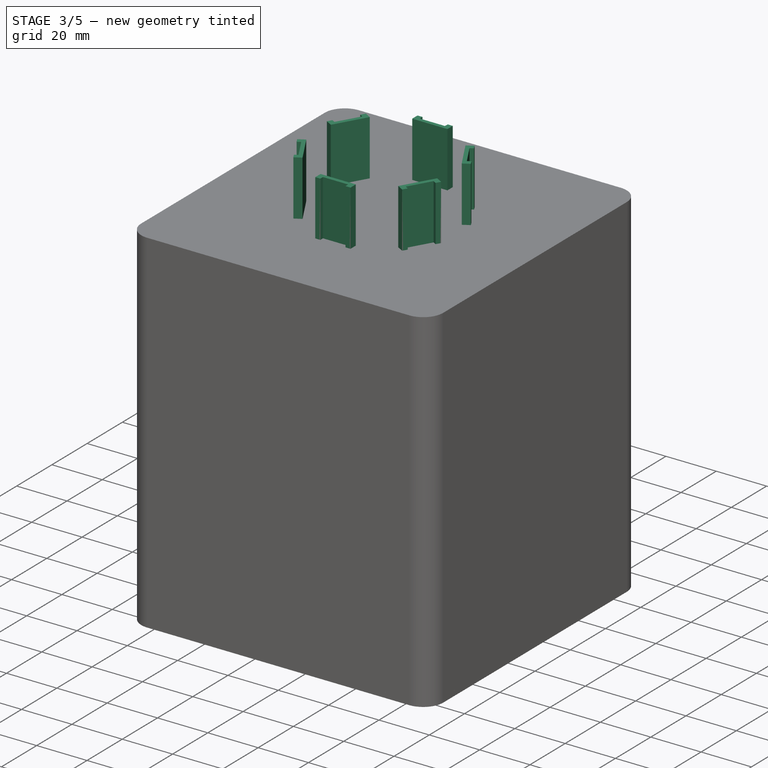
[diagram: stage 3 of 5 — iso view after this stage's code; geometry added in this stage tinted green]
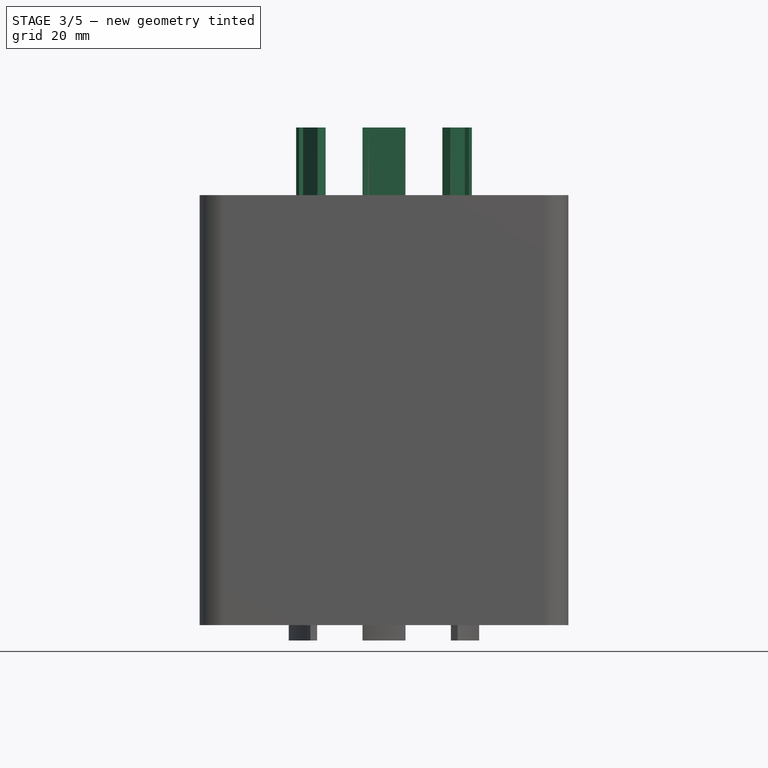
[diagram: stage 3 of 5 — front view after this stage's code; geometry added in this stage tinted green]
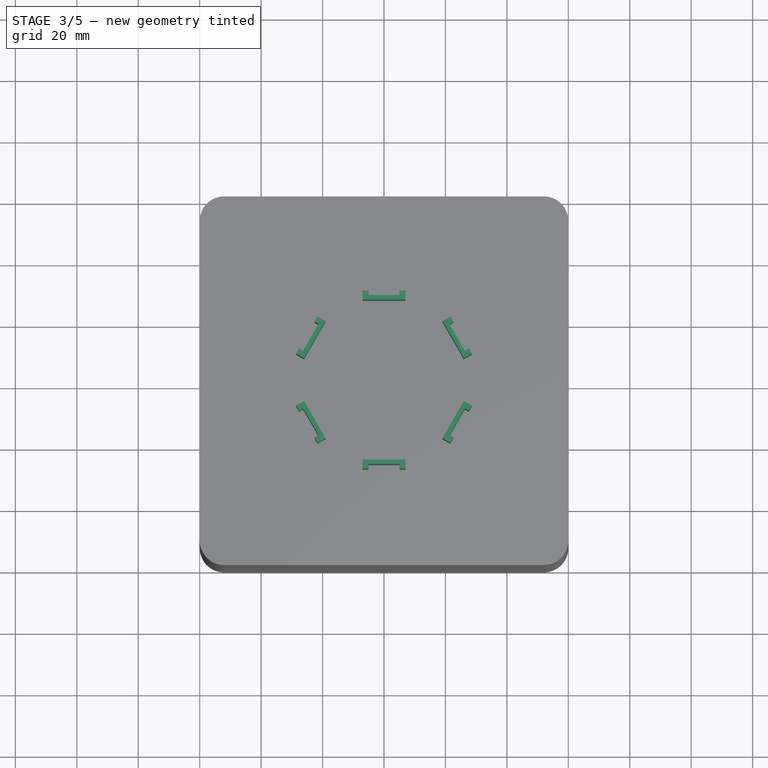
[diagram: stage 3 of 5 — top view after this stage's code; geometry added in this stage tinted green]
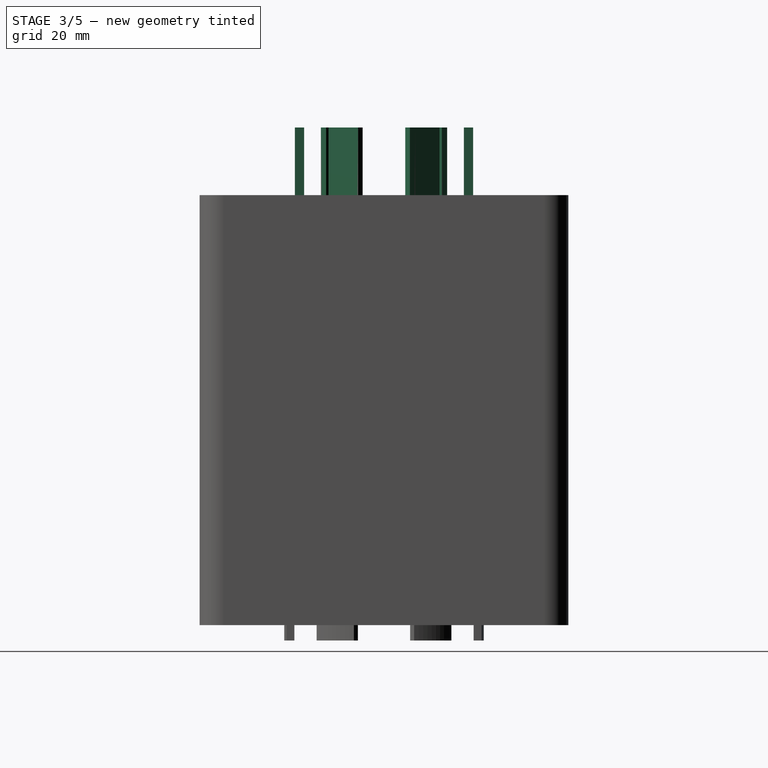
[diagram: stage 3 of 5 — right view after this stage's code; geometry added in this stage tinted green]
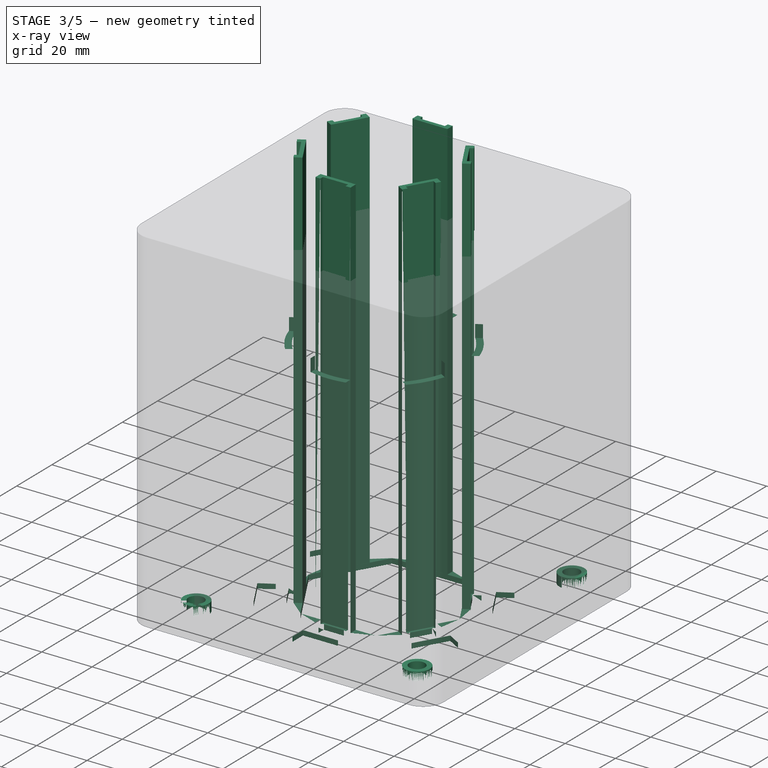
[diagram: stage 3 of 5 — x-ray composite at the iso view; earlier geometry ghosted, this stage's added geometry solid]
FEATURE [PartDesign::Body] Body
  AllowCompound = false
  Group = -> [Sketch,Pad,Thickness,Sketch001,Pad001,Sketch002,Pocket,Sketch006,Pad005,Chamfer002,Sketch007,Pocket001,Sketch008,Pocket002,Sketch009,Pocket003,Sketch010,Pad006,Sketch011,Pocket004,Chamfer,Chamfer003,Sketch012,Pad007,Sketch013,Pad008,PolarPattern]
  Origin = -> Origin001
  Tip = -> PolarPattern
FEATURE [App::Part] Part  label="Base"
  Group = -> [Body]
  Origin = -> Origin
FEATURE [Sketcher::SketchObject] Sketch014
  ArcFitTolerance = 1e-06
  AttachmentSupport = -> [XY_Plane005]
  FullyConstrained = true
  MakeInternals = false
  MapMode = 5
  sketch-geometry (12):
    g0: LineSegment StartX=-52 StartY=-60 StartZ=0 EndX=52 EndY=-60 EndZ=0
    g1: LineSegment StartX=60 StartY=-52 StartZ=0 EndX=60 EndY=52 EndZ=0
    g2: LineSegment StartX=52 StartY=60 StartZ=0 EndX=-52 EndY=60 EndZ=0
    g3: LineSegment StartX=-60 StartY=52 StartZ=0 EndX=-60 EndY=-52 EndZ=0
    g4: ArcOfCircle CenterX=-52 CenterY=52 CenterZ=0 NormalX=0 NormalY=0 NormalZ=1 AngleXU=0 Radius=8 StartAngle=1.5708 EndAngle=3.14159
    g5: GeomPoint [constr] X=-60 Y=60 Z=0
    g6: ArcOfCircle CenterX=52 CenterY=52 CenterZ=0 NormalX=0 NormalY=0 NormalZ=1 AngleXU=0 Radius=8 StartAngle=0 EndAngle=1.5708
    g7: GeomPoint [constr] X=60 Y=60 Z=0
    g8: ArcOfCircle CenterX=52 CenterY=-52 CenterZ=0 NormalX=0 NormalY=0 NormalZ=1 AngleXU=0 Radius=8 StartAngle=4.71239 EndAngle=6.28319
    g9: GeomPoint [constr] X=60 Y=-60 Z=0
    g10: ArcOfCircle CenterX=-52 CenterY=-52 CenterZ=0 NormalX=0 NormalY=0 NormalZ=1 AngleXU=0 Radius=8 StartAngle=3.14159 EndAngle=4.71239
    g11: GeomPoint [constr] X=-60 Y=-60 Z=0
  constraints (27):
    c: Horizontal(g0)
    c: Horizontal(g2)
    c: Vertical(g1)
    c: Vertical(g3)
    c: Distance(g9,g11) = 120
    c: Distance(g11,g5) = 120
    c: Symmetric(g5,g9,g-1)
    c: PointOnObject(g5,g2)
    c: PointOnObject(g5,g3)
    c: Tangent(g2,g4) = -1.5708
    c: Tangent(g3,g4) = -1.5708
    c: PointOnObject(g7,g2)
    c: PointOnObject(g7,g1)
    c: Tangent(g2,g6) = -1.5708
    c: Tangent(g1,g6) = -1.5708
    c: PointOnObject(g9,g1)
    c: PointOnObject(g9,g0)
    c: Tangent(g1,g8) = -1.5708
    c: Tangent(g0,g8) = -1.5708
    c: PointOnObject(g11,g3)
    c: PointOnObject(g11,g0)
    c: Tangent(g3,g10) = -1.5708
    c: Tangent(g0,g10) = -1.5708
    c: Equal(g10,g8)
    c: Equal(g8,g6)
    c: Equal(g6,g4)
    c: Radius(g4) = 8
FEATURE [PartDesign::Pad] Pad009
  Direction = (0,0,1)
  Length = 2
  Length2 = 10
  Profile = -> Sketch014
  ReferenceAxis = -> Sketch014 [N_Axis]
  Refine = true
  Suppressed = false
  Type = 0
FEATURE [Sketcher::SketchObject] Sketch015
  ArcFitTolerance = 1e-06
  AttachmentSupport = -> [Pad009]
  ExternalGeometry = -> [Pad009]
  FullyConstrained = true
  MakeInternals = false
  MapMode = 5
  Placement = pos=(0,0,2) rot=(0,0,1;0rad)
  sketch-geometry (4):
    g0: Circle CenterX=-52 CenterY=52 CenterZ=0 NormalX=0 NormalY=0 NormalZ=1 AngleXU=0 Radius=2
    g1: Circle CenterX=52 CenterY=52 CenterZ=0 NormalX=0 NormalY=0 NormalZ=1 AngleXU=0 Radius=2
    g2: Circle CenterX=52 CenterY=-52 CenterZ=0 NormalX=0 NormalY=0 NormalZ=1 AngleXU=0 Radius=2
    g3: Circle CenterX=-52 CenterY=-52 CenterZ=0 NormalX=0 NormalY=0 NormalZ=1 AngleXU=0 Radius=2
  constraints (8):
    c: Coincident(g0,g-3)
    c: Diameter(g0) = 4
    c: Diameter(g1) = 4
    c: Coincident(g1,g-4)
    c: Diameter(g2) = 4
    c: Coincident(g2,g-5)
    c: Diameter(g3) = 4
    c: Coincident(g3,g-6)
FEATURE [PartDesign::Pocket] Pocket005
  BaseFeature = -> Pad009
  Direction = (0,0,-1)
  Length = 2
  Length2 = 5
  Profile = -> Sketch015
  ReferenceAxis = -> Sketch015 [N_Axis]
  Refine = true
  Suppressed = false
  Type = 0
FEATURE [Sketcher::SketchObject] Sketch016
  ArcFitTolerance = 1e-06
  AttachmentSupport = -> [Pocket005]
  FullyConstrained = true
  MakeInternals = false
  MapMode = 5
  Placement = pos=(0,0,2) rot=(0,0,1;0rad)
  sketch-geometry (7):
    g0: LineSegment StartX=30 StartY=0 StartZ=0 EndX=15 EndY=25.9808 EndZ=0
    g1: LineSegment StartX=15 StartY=25.9808 StartZ=0 EndX=-15 EndY=25.9808 EndZ=0
    g2: LineSegment StartX=-15 StartY=25.9808 StartZ=0 EndX=-30 EndY=3.6e-15 EndZ=0
    g3: LineSegment StartX=-30 StartY=3.6e-15 StartZ=0 EndX=-15 EndY=-25.9808 EndZ=0
    g4: LineSegment StartX=-15 StartY=-25.9808 StartZ=0 EndX=15 EndY=-25.9808 EndZ=0
    g5: LineSegment StartX=15 StartY=-25.9808 StartZ=0 EndX=30 EndY=0 EndZ=0
    g6: Circle [constr] CenterX=0 CenterY=0 CenterZ=0 NormalX=0 NormalY=0 NormalZ=1 AngleXU=0 Radius=30
  constraints (16):
    c: Coincident(g0,g1)
    c: Coincident(g1,g2)
    c: Coincident(g2,g3)
    c: Coincident(g3,g4)
    c: Coincident(g4,g5)
    c: Coincident(g5,g0)
    c: Equal(g0, g1-g5) x5
    c: PointOnObject(g0,g6)
    c: PointOnObject(g1,g6)
    c: PointOnObject(g2,g6)
    c: PointOnObject(g3,g6)
    c: PointOnObject(g4,g6)
    c: PointOnObject(g5,g6)
    c: Radius(g6) = 30
    c: Coincident(g6,g-1)
    c: PointOnObject(g5,g-1)
FEATURE [PartDesign::Pocket] Pocket006
  BaseFeature = -> Pocket005
  Direction = (0,0,-1)
  Length = 2
  Length2 = 5
  Profile = -> Sketch016
  ReferenceAxis = -> Sketch016 [N_Axis]
  Refine = true
  Suppressed = false
  Type = 0
FEATURE [Sketcher::SketchObject] Sketch017
  ArcFitTolerance = 1e-06
  AttachmentSupport = -> [Pocket006]
  FullyConstrained = false
  MakeInternals = false
  MapMode = 5
  Placement = pos=(0,0,2) rot=(0,0,1;0rad)
  sketch-geometry (8):
    g0: LineSegment StartX=-7 StartY=26 StartZ=0 EndX=7 EndY=26 EndZ=0
    g1: LineSegment StartX=7 StartY=26 StartZ=0 EndX=7 EndY=29 EndZ=0
    g2: LineSegment StartX=7 StartY=29 StartZ=0 EndX=5 EndY=29 EndZ=0
    g3: LineSegment StartX=-7 StartY=29 StartZ=0 EndX=-7 EndY=26 EndZ=0
    g4: LineSegment StartX=-5 StartY=29 StartZ=0 EndX=-5 EndY=27.5 EndZ=0
    g5: LineSegment StartX=-5 StartY=27.5 StartZ=0 EndX=5 EndY=27.5 EndZ=0
    g6: LineSegment StartX=5 StartY=27.5 StartZ=0 EndX=5 EndY=29 EndZ=0
    g7: LineSegment StartX=-5 StartY=29 StartZ=0 EndX=-7 EndY=29 EndZ=0
  constraints (23):
    c: Coincident(g0,g1)
    c: Coincident(g1,g2)
    c: Coincident(g7,g3)
    c: Coincident(g3,g0)
    c: Horizontal(g0)
    c: Horizontal(g2)
    c: Vertical(g1)
    c: Vertical(g3)
    c: Distance(g1,g3) = 14
    c: Distance(g0,g7) = 3
    c: DistanceY(g-1,g0) = 26
    c: DistanceX(g-1,g0) = 7
    c: Coincident(g4,g5)
    c: Coincident(g5,g6)
    c: Vertical(g4)
    c: Vertical(g6)
    c: Horizontal(g5)
    c: Distance(g4,g6) = 10
    c: Distance(g5,g4) = 1.5
    c: PointOnObject(g4,g7)
    c: DistanceX(g-1,g5) = 5
    c: PointOnObject(g2,g6)
    c: PointOnObject(g7,g4)
FEATURE [PartDesign::Pad] Pad010
  BaseFeature = -> Pocket006
  Direction = (0,0,1)
  Length = 160
  Length2 = 10
  Profile = -> Sketch017
  ReferenceAxis = -> Sketch017 [N_Axis]
  Refine = true
  Suppressed = false
  Type = 0
FEATURE [PartDesign::PolarPattern] PolarPattern001
  Angle = 360
  Axis = -> Sketch017 [N_Axis]
  BaseFeature = -> Pad010
  Mode = 0
  Occurrences = 6
  Offset = 120
  Originals = -> [Pad010]
  Refine = true
  Suppressed = false
  TransformMode = 0
FEATURE [Sketcher::SketchObject] Sketch018
  ArcFitTolerance = 1e-06
  AttachmentSupport = -> [PolarPattern001]
  ExternalGeometry = -> [PolarPattern001]
  FullyConstrained = true
  MakeInternals = false
  MapMode = 5
  Placement = pos=(0,0,2) rot=(0,0,1;0rad)
  sketch-geometry (4):
    g0: LineSegment StartX=-4 StartY=28.5 StartZ=0 EndX=4 EndY=28.5 EndZ=0
    g1: LineSegment StartX=4 StartY=28.5 StartZ=0 EndX=4 EndY=31.5 EndZ=0
    g2: LineSegment StartX=4 StartY=31.5 StartZ=0 EndX=-4 EndY=31.5 EndZ=0
    g3: LineSegment StartX=-4 StartY=31.5 StartZ=0 EndX=-4 EndY=28.5 EndZ=0
  constraints (12):
    c: Coincident(g0,g1)
    c: Coincident(g1,g2)
    c: Coincident(g2,g3)
    c: Coincident(g3,g0)
    c: Horizontal(g0)
    c: Horizontal(g2)
    c: Vertical(g1)
    c: Vertical(g3)
    c: Distance(g1,g3) = 8
    c: Distance(g0,g2) = 3
    c: DistanceY(g-3,g0) = 1
    c: DistanceX(g0,g-1) = 4
FEATURE [PartDesign::Pocket] Pocket007
  BaseFeature = -> PolarPattern001
  Direction = (0,0,-1)
  Length = 2
  Length2 = 5
  Profile = -> Sketch018
  ReferenceAxis = -> Sketch018 [N_Axis]
  Refine = true
  Suppressed = false
  Type = 0
FEATURE [PartDesign::PolarPattern] PolarPattern002
  Angle = 360
  Axis = -> Sketch018 [N_Axis]
  BaseFeature = -> Pocket007
  Mode = 0
  Occurrences = 6
  Offset = 120
  Originals = -> [Pocket007]
  Refine = true
  Suppressed = false
  TransformMode = 0
FEATURE [PartDesign::PolarPattern] PolarPattern007
  Angle = 360
  Axis = -> Sketch030 [N_Axis]
  BaseFeature = -> Pocket013
  Mode = 0
  Occurrences = 6
  Offset = 120
  Originals = -> [Pocket013]
  Refine = true
  Suppressed = false
  TransformMode = 0
FEATURE [Sketcher::SketchObject] Sketch031
  ArcFitTolerance = 1e-06
  AttachmentSupport = -> [PolarPattern007]
  ExternalGeometry = -> [PolarPattern007]
  FullyConstrained = true
  MakeInternals = false
  MapMode = 5
  Placement = pos=(0,0,98) rot=(0,0,1;0rad)
  sketch-geometry (4):
    g0: LineSegment StartX=-7 StartY=28 StartZ=0 EndX=7 EndY=28 EndZ=0
    g1: LineSegment StartX=7 StartY=28 StartZ=0 EndX=7 EndY=34 EndZ=0
    g2: LineSegment StartX=7 StartY=34 StartZ=0 EndX=-7 EndY=34 EndZ=0
    g3: LineSegment StartX=-7 StartY=34 StartZ=0 EndX=-7 EndY=28 EndZ=0
  constraints (12):
    c: Coincident(g0,g1)
    c: Coincident(g1,g2)
    c: Coincident(g2,g3)
    c: Coincident(g3,g0)
    c: Horizontal(g0)
    c: Horizontal(g2)
    c: Vertical(g1)
    c: Vertical(g3)
    c: Distance(g1,g3) = 14
    c: Distance(g0,g2) = 6
    c: Vertical(g1,g-3)
    c: DistanceY(g1,g-3) = 2
FEATURE [PartDesign::Pocket] Pocket014
  BaseFeature = -> PolarPattern007
  Direction = (0,0,-1)
  Length = 5
  Length2 = 5
  Profile = -> Sketch031
  ReferenceAxis = -> Sketch031 [N_Axis]
  Refine = true
  Suppressed = false
  Type = 0
FEATURE [PartDesign::PolarPattern] PolarPattern008
  Angle = 360
  Axis = -> Sketch031 [N_Axis]
  BaseFeature = -> Pocket014
  Mode = 0
  Occurrences = 6
  Offset = 120
  Originals = -> [Pocket014]
  Refine = true
  Suppressed = false
  TransformMode = 0
FEATURE [Sketcher::SketchObject] Sketch032
  ArcFitTolerance = 1e-06
  AttachmentSupport = -> [PolarPattern008]
  ExternalGeometry = -> [PolarPattern008]
  FullyConstrained = true
  MakeInternals = false
  MapMode = 5
  Placement = pos=(0,0,2) rot=(0,0,1;0rad)
  sketch-geometry (2):
    g0: Circle CenterX=-43.9 CenterY=43.9 CenterZ=0 NormalX=0 NormalY=0 NormalZ=1 AngleXU=0 Radius=5
    g1: Circle CenterX=-43.9 CenterY=43.9 CenterZ=0 NormalX=0 NormalY=0 NormalZ=1 AngleXU=0 Radius=3.1
  constraints (5):
    c: Diameter(g0) = 10
    c: Diameter(g1) = 6.2
    c: Coincident(g1,g0)
    c: DistanceY(g0,g-4) = 8
    c: DistanceX(g-4,g0) = 8
FEATURE [PartDesign::Pad] Pad015
  BaseFeature = -> PolarPattern008
  Direction = (0,0,1)
  Length = 4
  Length2 = 10
  Profile = -> Sketch032
  ReferenceAxis = -> Sketch032 [N_Axis]
  Refine = true
  Suppressed = false
  Type = 0
FEATURE [PartDesign::PolarPattern] PolarPattern009
  Angle = 360
  Axis = -> Sketch032 [N_Axis]
  BaseFeature = -> Pad015
  Mode = 0
  Occurrences = 4
  Offset = 120
  Originals = -> [Pad015]
  Refine = true
  Suppressed = false
  TransformMode = 0
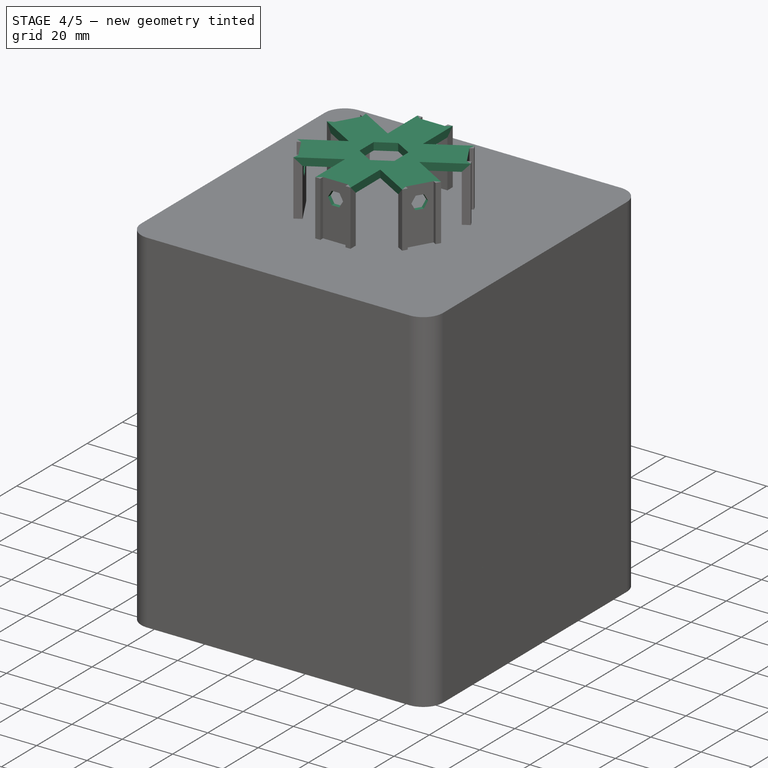
[diagram: stage 4 of 5 — iso view after this stage's code; geometry added in this stage tinted green]
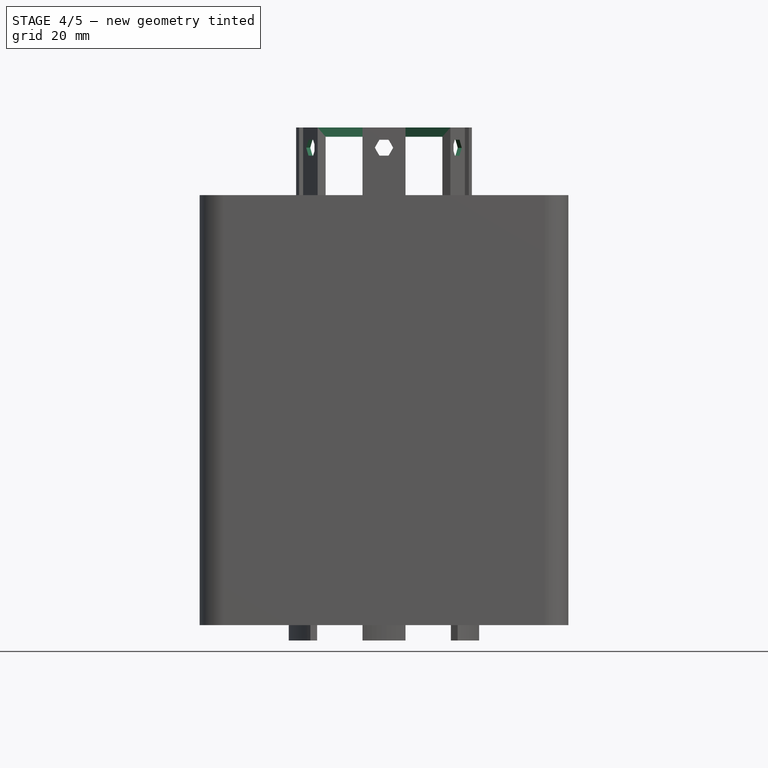
[diagram: stage 4 of 5 — front view after this stage's code; geometry added in this stage tinted green]
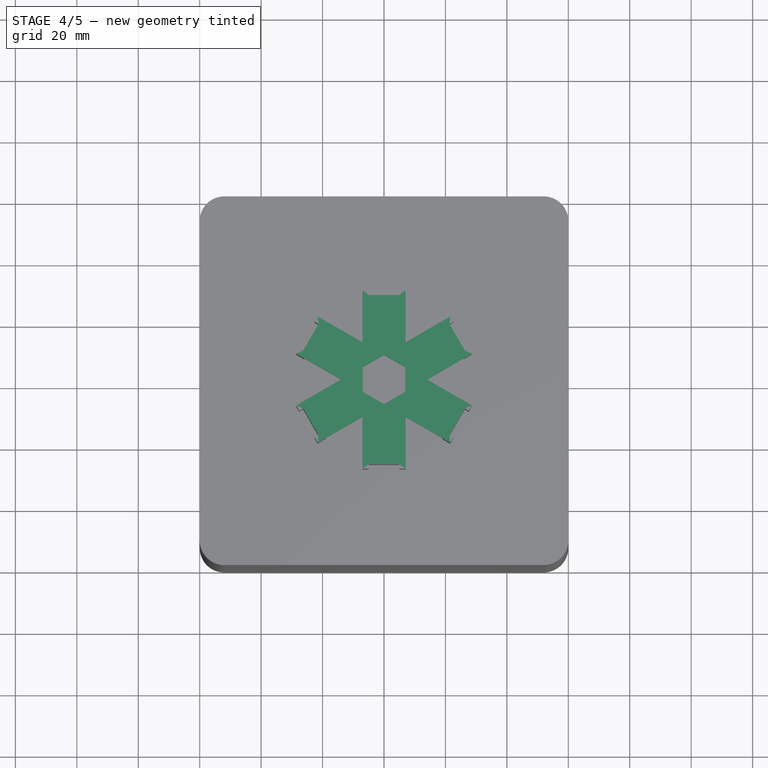
[diagram: stage 4 of 5 — top view after this stage's code; geometry added in this stage tinted green]
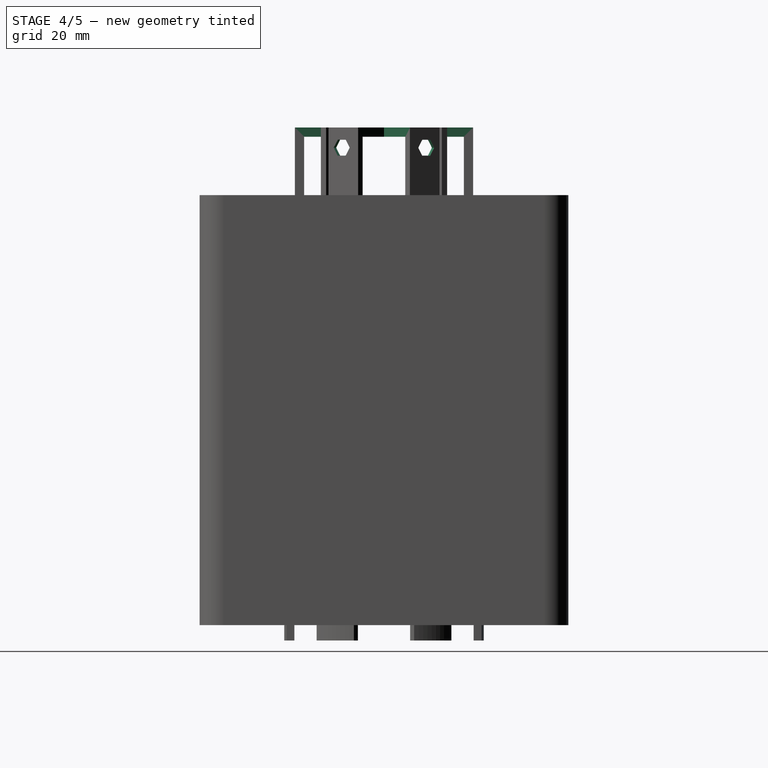
[diagram: stage 4 of 5 — right view after this stage's code; geometry added in this stage tinted green]
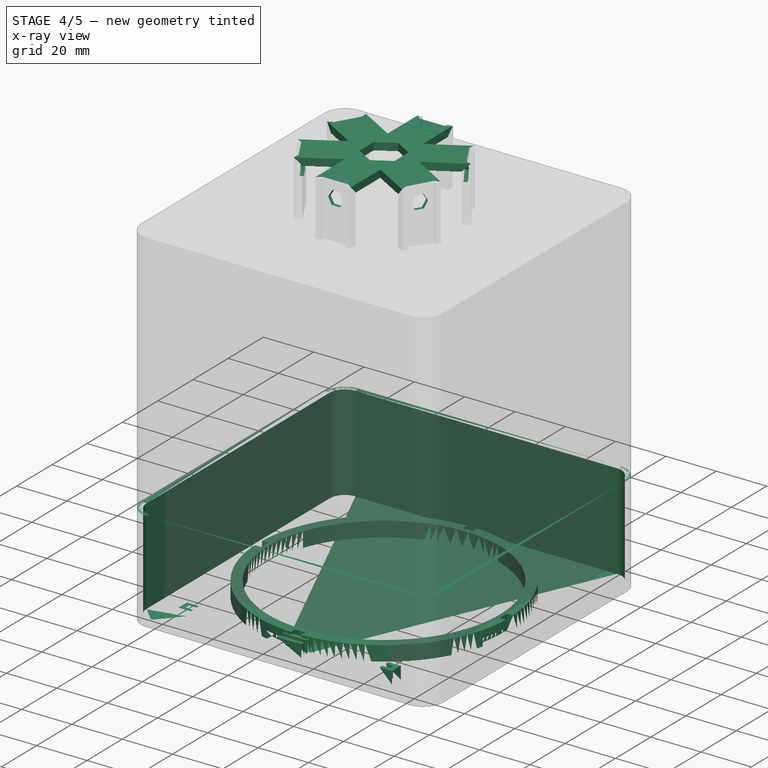
[diagram: stage 4 of 5 — x-ray composite at the iso view; earlier geometry ghosted, this stage's added geometry solid]
FEATURE [Sketcher::SketchObject] Sketch
  ArcFitTolerance = 1e-06
  AttachmentSupport = -> [XY_Plane001]
  FullyConstrained = true
  MakeInternals = false
  MapMode = 5
  sketch-geometry (12):
    g0: LineSegment StartX=-52 StartY=-60 StartZ=0 EndX=52 EndY=-60 EndZ=0
    g1: LineSegment StartX=60 StartY=-52 StartZ=0 EndX=60 EndY=52 EndZ=0
    g2: LineSegment StartX=52 StartY=60 StartZ=0 EndX=-52 EndY=60 EndZ=0
    g3: LineSegment StartX=-60 StartY=52 StartZ=0 EndX=-60 EndY=-52 EndZ=0
    g4: ArcOfCircle CenterX=-52 CenterY=52 CenterZ=0 NormalX=0 NormalY=0 NormalZ=1 AngleXU=0 Radius=8 StartAngle=1.5708 EndAngle=3.14159
    g5: GeomPoint [constr] X=-60 Y=60 Z=0
    g6: ArcOfCircle CenterX=52 CenterY=52 CenterZ=0 NormalX=0 NormalY=0 NormalZ=1 AngleXU=0 Radius=8 StartAngle=0 EndAngle=1.5708
    g7: GeomPoint [constr] X=60 Y=60 Z=0
    g8: ArcOfCircle CenterX=-52 CenterY=-52 CenterZ=0 NormalX=0 NormalY=0 NormalZ=1 AngleXU=0 Radius=8 StartAngle=3.14159 EndAngle=4.71239
    g9: GeomPoint [constr] X=-60 Y=-60 Z=0
    g10: ArcOfCircle CenterX=52 CenterY=-52 CenterZ=0 NormalX=0 NormalY=0 NormalZ=1 AngleXU=0 Radius=8 StartAngle=4.71239 EndAngle=6.28319
    g11: GeomPoint [constr] X=60 Y=-60 Z=0
  constraints (27):
    c: Horizontal(g0)
    c: Horizontal(g2)
    c: Vertical(g1)
    c: Vertical(g3)
    c: Distance(g11,g9) = 120
    c: Distance(g9,g5) = 120
    c: Symmetric(g9,g7,g-1)
    c: PointOnObject(g5,g2)
    c: PointOnObject(g5,g3)
    c: Tangent(g2,g4) = -1.5708
    c: Tangent(g3,g4) = -1.5708
    c: PointOnObject(g7,g2)
    c: PointOnObject(g7,g1)
    c: Tangent(g2,g6) = -1.5708
    c: Tangent(g1,g6) = -1.5708
    c: PointOnObject(g9,g3)
    c: PointOnObject(g9,g0)
    c: Tangent(g3,g8) = -1.5708
    c: Tangent(g0,g8) = -1.5708
    c: PointOnObject(g11,g0)
    c: PointOnObject(g11,g1)
    c: Tangent(g0,g10) = -1.5708
    c: Tangent(g1,g10) = -1.5708
    c: Equal(g10,g6)
    c: Equal(g6,g4)
    c: Equal(g4,g8)
    c: Radius(g8) = 8
FEATURE [PartDesign::Pad] Pad
  Direction = (0,0,1)
  Length = 40
  Length2 = 10
  Profile = -> Sketch
  ReferenceAxis = -> Sketch [N_Axis]
  Refine = true
  Suppressed = false
  Type = 0
  expr: Length = Spreadsheet.baseHeight
FEATURE [PartDesign::Thickness] Thickness
  Base = -> Pad [Face10]
  BaseFeature = -> Pad
  Intersection = false
  Join = 0
  Mode = 0
  Refine = true
  Reversed = true
  SupportTransform = false
  Suppressed = false
  Value = 2
FEATURE [Sketcher::SketchObject] Sketch001
  ArcFitTolerance = 1e-06
  AttachmentSupport = -> [Thickness]
  ExternalGeometry = -> [Thickness]
  FullyConstrained = true
  MakeInternals = false
  MapMode = 5
  Placement = pos=(0,0,2) rot=(0,0,1;0rad)
  sketch-geometry (24):
    g0: LineSegment StartX=-39 StartY=-49 StartZ=0 EndX=-44 EndY=-49 EndZ=0
    g1: LineSegment StartX=-44 StartY=-49 StartZ=0 EndX=-44 EndY=-54 EndZ=0
    g2: LineSegment StartX=-44 StartY=-54 StartZ=0 EndX=-39 EndY=-54 EndZ=0
    g3: LineSegment StartX=-39 StartY=-54 StartZ=0 EndX=-39 EndY=-52.4 EndZ=0
    g4: LineSegment StartX=-39 StartY=-52.4 StartZ=0 EndX=-42 EndY=-52.4 EndZ=0
    g5: LineSegment StartX=-42 StartY=-52.4 StartZ=0 EndX=-42 EndY=-50.6 EndZ=0
    g6: LineSegment StartX=-42 StartY=-50.6 StartZ=0 EndX=-39 EndY=-50.6 EndZ=0
    g7: LineSegment StartX=-39 StartY=-50.6 StartZ=0 EndX=-39 EndY=-49 EndZ=0
    g8: LineSegment StartX=36 StartY=-54 StartZ=0 EndX=41 EndY=-54 EndZ=0
    g9: LineSegment StartX=41 StartY=-54 StartZ=0 EndX=41 EndY=-49 EndZ=0
    g10: LineSegment StartX=41 StartY=-49 StartZ=0 EndX=36 EndY=-49 EndZ=0
    g11: LineSegment StartX=36 StartY=-49 StartZ=0 EndX=36 EndY=-50.6 EndZ=0
    g12: LineSegment StartX=36 StartY=-50.6 StartZ=0 EndX=39 EndY=-50.6 EndZ=0
    g13: LineSegment StartX=39 StartY=-50.6 StartZ=0 EndX=39 EndY=-52.4 EndZ=0
    g14: LineSegment StartX=39 StartY=-52.4 StartZ=0 EndX=36 EndY=-52.4 EndZ=0
    g15: LineSegment StartX=36 StartY=-52.4 StartZ=0 EndX=36 EndY=-54 EndZ=0
    g16: LineSegment StartX=-5 StartY=-49 StartZ=0 EndX=-5 EndY=-50.6 EndZ=0
    g17: LineSegment StartX=-5 StartY=-50.6 StartZ=0 EndX=5 EndY=-50.6 EndZ=0
    g18: LineSegment StartX=5 StartY=-50.6 StartZ=0 EndX=5 EndY=-49 EndZ=0
    g19: LineSegment StartX=5 StartY=-49 StartZ=0 EndX=-5 EndY=-49 EndZ=0
    g20: LineSegment StartX=-5 StartY=-52.4 StartZ=0 EndX=-5 EndY=-54 EndZ=0
    g21: LineSegment StartX=-5 StartY=-54 StartZ=0 EndX=5 EndY=-54 EndZ=0
    g22: LineSegment StartX=5 StartY=-54 StartZ=0 EndX=5 EndY=-52.4 EndZ=0
    g23: LineSegment StartX=5 StartY=-52.4 StartZ=0 EndX=-5 EndY=-52.4 EndZ=0
  constraints (72):
    c: Horizontal(g0)
    c: Coincident(g0,g1)
    c: Vertical(g1)
    c: Coincident(g1,g2)
    c: Horizontal(g2)
    c: Coincident(g2,g3)
    c: Coincident(g3,g4)
    c: Coincident(g4,g5)
    c: Vertical(g5)
    c: Coincident(g5,g6)
    c: Coincident(g6,g7)
    c: Coincident(g7,g0)
    c: DistanceX(g0,g0) = 5
    c: Equal(g0,g2)
    c: DistanceY(g1,g1) = 5
    c: DistanceY(g5,g5) = 1.8
    c: Vertical(g7)
    c: Vertical(g3)
    c: Horizontal(g6)
    c: Horizontal(g4)
    c: DistanceY(g5,g0) = 1.6
    c: DistanceX(g0,g5) = 2
    c: DistanceY(g-3,g2) = 4
    c: DistanceX(g5,g-1) = 42
    c: Horizontal(g8)
    c: Coincident(g8,g9)
    c: Vertical(g9)
    c: Coincident(g9,g10)
    c: Horizontal(g10)
    c: Coincident(g10,g11)
    c: Vertical(g11)
    c: Coincident(g11,g12)
    c: Coincident(g12,g13)
    c: Coincident(g13,g14)
    c: Horizontal(g14)
    c: Coincident(g14,g15)
    c: Coincident(g15,g8)
    c: Vertical(g15)
    c: Equal(g10,g8)
    c: DistanceX(g10,g10) = 5
    c: Vertical(g13)
    c: DistanceY(g13,g13) = 1.8
    c: DistanceY(g11,g11) = 1.6
    c: DistanceY(g9,g9) = 5
    c: Equal(g11,g15)
    c: DistanceY(g-3,g8) = 4
    c: DistanceX(g12,g9) = 2
    c: DistanceX(g-1,g12) = 39
    c: Coincident(g16,g17)
    c: Coincident(g17,g18)
    c: Coincident(g18,g19)
    c: Coincident(g19,g16)
    c: Vertical(g16)
    c: Vertical(g18)
    c: Horizontal(g17)
    c: Horizontal(g19)
    c: Distance(g16,g18) = 10
    c: Equal(g11,g16)
    c: Horizontal(g18,g10)
    c: DistanceX(g-1,g18) = 5
    c: Coincident(g20,g21)
    c: Coincident(g21,g22)
    c: Coincident(g22,g23)
    c: Coincident(g23,g20)
    c: Vertical(g20)
    c: Vertical(g22)
    c: Horizontal(g21)
    c: Horizontal(g23)
    c: Distance(g20,g22) = 10
    c: Equal(g22,g15)
    c: Horizontal(g22,g14)
    c: Vertical(g22,g17)
FEATURE [PartDesign::Pad] Pad001
  BaseFeature = -> Thickness
  Direction = (0,0,1)
  Length = 5
  Length2 = 10
  Profile = -> Sketch001
  ReferenceAxis = -> Sketch001 [N_Axis]
  Refine = true
  Suppressed = false
  Type = 0
FEATURE [Sketcher::SketchObject] Sketch019
  ArcFitTolerance = 1e-06
  AttachmentSupport = -> [PolarPattern002]
  FullyConstrained = true
  MakeInternals = false
  MapMode = 5
  Placement = pos=(0,0,162) rot=(0,0,1;0rad)
  sketch-geometry (4):
    g0: LineSegment StartX=-7 StartY=27 StartZ=0 EndX=-7 EndY=0 EndZ=0
    g1: LineSegment StartX=-7 StartY=0 StartZ=0 EndX=7 EndY=0 EndZ=0
    g2: LineSegment StartX=7 StartY=0 StartZ=0 EndX=7 EndY=27 EndZ=0
    g3: LineSegment StartX=7 StartY=27 StartZ=0 EndX=-7 EndY=27 EndZ=0
  constraints (12):
    c: Coincident(g0,g1)
    c: Coincident(g1,g2)
    c: Coincident(g2,g3)
    c: Coincident(g3,g0)
    c: Vertical(g0)
    c: Vertical(g2)
    c: Horizontal(g1)
    c: Horizontal(g3)
    c: Distance(g0,g2) = 14
    c: Distance(g1,g3) = 27
    c: PointOnObject(g1,g-1)
    c: DistanceX(g-1,g1) = 7
FEATURE [PartDesign::Pad] Pad011
  BaseFeature = -> PolarPattern002
  Direction = (0,0,1)
  Length = 3
  Length2 = 10
  Profile = -> Sketch019
  ReferenceAxis = -> Sketch019 [N_Axis]
  Refine = true
  Reversed = true
  Suppressed = false
  Type = 0
FEATURE [PartDesign::PolarPattern] PolarPattern003
  Angle = 360
  Axis = -> Sketch019 [N_Axis]
  BaseFeature = -> Pad011
  Mode = 0
  Occurrences = 6
  Offset = 120
  Originals = -> [Pad011]
  Refine = true
  Suppressed = false
  TransformMode = 0
FEATURE [Sketcher::SketchObject] Sketch020
  ArcFitTolerance = 1e-06
  AttachmentSupport = -> [PolarPattern003]
  ExternalGeometry = -> [PolarPattern003]
  FullyConstrained = false
  MakeInternals = false
  MapMode = 5
  Placement = pos=(23.8157,13.75,0) rot=(0.377964,0.654654,0.654654;2.41886rad)
  sketch-geometry (7):
    g0: LineSegment StartX=2.99975 StartY=155.383 StartZ=0 EndX=1.53345 EndY=158 EndZ=0
    g1: LineSegment StartX=1.53345 StartY=158 StartZ=0 EndX=-1.4663 EndY=158.039 EndZ=0
    g2: LineSegment StartX=-1.4663 StartY=158.039 StartZ=0 EndX=-2.99975 EndY=155.46 EndZ=0
    g3: LineSegment StartX=-2.99975 StartY=155.46 StartZ=0 EndX=-1.53345 EndY=152.843 EndZ=0
    g4: LineSegment StartX=-1.53345 StartY=152.843 StartZ=0 EndX=1.4663 EndY=152.804 EndZ=0
    g5: LineSegment StartX=1.4663 StartY=152.804 StartZ=0 EndX=2.99975 EndY=155.383 EndZ=0
    g6: Circle [constr] CenterX=0 CenterY=155.422 CenterZ=0 NormalX=0 NormalY=0 NormalZ=1 AngleXU=0 Radius=3
  constraints (16):
    c: Coincident(g0,g1)
    c: Coincident(g1,g2)
    c: Coincident(g2,g3)
    c: Coincident(g3,g4)
    c: Coincident(g4,g5)
    c: Coincident(g5,g0)
    c: Equal(g0, g1-g5) x5
    c: PointOnObject(g0,g6)
    c: PointOnObject(g1,g6)
    c: PointOnObject(g2,g6)
    c: PointOnObject(g3,g6)
    c: PointOnObject(g4,g6)
    c: PointOnObject(g5,g6)
    c: Radius(g6) = 3
    c: PointOnObject(g6,g-2)
    c: DistanceY(g0,g-3) = 4
FEATURE [PartDesign::Pocket] Pocket008
  BaseFeature = -> PolarPattern003
  Direction = (-0.866025,-0.5,-2e-16)
  Length = 5
  Length2 = 5
  Profile = -> Sketch020
  ReferenceAxis = -> Sketch020 [N_Axis]
  Refine = true
  Suppressed = false
  Type = 0
FEATURE [PartDesign::PolarPattern] PolarPattern004
  Angle = 360
  Axis = -> Z_Axis005
  BaseFeature = -> Pocket008
  Mode = 0
  Occurrences = 6
  Offset = 120
  Originals = -> [Pocket008]
  Refine = true
  Suppressed = false
  TransformMode = 0
FEATURE [Sketcher::SketchObject] Sketch021
  ArcFitTolerance = 1e-06
  AttachmentSupport = -> [PolarPattern004]
  FullyConstrained = true
  MakeInternals = false
  MapMode = 5
  Placement = pos=(0,0,2) rot=(0,0,1;0rad)
  sketch-geometry (2):
    g0: Circle CenterX=0 CenterY=0 CenterZ=0 NormalX=0 NormalY=0 NormalZ=1 AngleXU=0 Radius=50
    g1: Circle CenterX=0 CenterY=0 CenterZ=0 NormalX=0 NormalY=0 NormalZ=1 AngleXU=0 Radius=46
  constraints (4):
    c: Diameter(g0) = 100
    c: Coincident(g0,g-1)
    c: Diameter(g1) = 92
    c: Coincident(g1,g0)
FEATURE [PartDesign::Pad] Pad012
  BaseFeature = -> PolarPattern004
  Direction = (0,0,1)
  Length = 6
  Length2 = 10
  Profile = -> Sketch021
  ReferenceAxis = -> Sketch021 [N_Axis]
  Refine = true
  Suppressed = false
  Type = 0
FEATURE [Sketcher::SketchObject] Sketch022
  ArcFitTolerance = 1e-06
  AttachmentSupport = -> [Pad012]
  FullyConstrained = true
  MakeInternals = false
  MapMode = 5
  Placement = pos=(0,0,8) rot=(0,0,1;0rad)
  sketch-geometry (4):
    g0: LineSegment StartX=-2 StartY=-50.5 StartZ=0 EndX=2 EndY=-50.5 EndZ=0
    g1: LineSegment StartX=2 StartY=-50.5 StartZ=0 EndX=2 EndY=-47.5 EndZ=0
    g2: LineSegment StartX=2 StartY=-47.5 StartZ=0 EndX=-2 EndY=-47.5 EndZ=0
    g3: LineSegment StartX=-2 StartY=-47.5 StartZ=0 EndX=-2 EndY=-50.5 EndZ=0
  constraints (12):
    c: Coincident(g0,g1)
    c: Coincident(g1,g2)
    c: Coincident(g2,g3)
    c: Coincident(g3,g0)
    c: Horizontal(g0)
    c: Horizontal(g2)
    c: Vertical(g1)
    c: Vertical(g3)
    c: Distance(g1,g3) = 4
    c: Distance(g0,g2) = 3
    c: DistanceY(g1,g-1) = 47.5
    c: DistanceX(g-1,g1) = 2
FEATURE [PartDesign::Pocket] Pocket009
  BaseFeature = -> Pad012
  Direction = (0,0,-1)
  Length = 6
  Length2 = 5
  Profile = -> Sketch022
  ReferenceAxis = -> Sketch022 [N_Axis]
  Refine = true
  Suppressed = false
  Type = 0
FEATURE [PartDesign::PolarPattern] PolarPattern005
  Angle = 360
  Axis = -> Sketch022 [N_Axis]
  BaseFeature = -> Pocket009
  Mode = 0
  Occurrences = 4
  Offset = 120
  Originals = -> [Pocket009]
  Refine = true
  Suppressed = false
  TransformMode = 0
FEATURE [PartDesign::Plane] DatumPlane
  AttachmentSupport = -> [PolarPattern005]
  Length = 149.96
  MapMode = 5
  Placement = pos=(-2,0,0) rot=(0.57735,0.57735,0.57735;2.0944rad)
  ResizeMode = 0
  Width = 216.96
FEATURE [Sketcher::SketchObject] Sketch023
  ArcFitTolerance = 1e-06
  AttachmentSupport = -> [DatumPlane]
  ExternalGeometry = -> [PolarPattern005]
  FullyConstrained = true
  MakeInternals = false
  MapMode = 5
  Placement = pos=(-2,0,0) rot=(0.57735,0.57735,0.57735;2.0944rad)
  sketch-geometry (4):
    g0: LineSegment StartX=-49.96 StartY=5 StartZ=0 EndX=-49.96 EndY=2 EndZ=0
    g1: LineSegment StartX=-49.96 StartY=2 StartZ=0 EndX=-47.46 EndY=2 EndZ=0
    g2: LineSegment StartX=-47.46 StartY=2 StartZ=0 EndX=-47.46 EndY=5 EndZ=0
    g3: LineSegment StartX=-47.46 StartY=5 StartZ=0 EndX=-49.96 EndY=5 EndZ=0
  constraints (11):
    c: Coincident(g0,g1)
    c: Coincident(g1,g2)
    c: Coincident(g2,g3)
    c: Coincident(g3,g0)
    c: Vertical(g0)
    c: Vertical(g2)
    c: Horizontal(g1)
    c: Horizontal(g3)
    c: Distance(g0,g2) = 2.5
    c: Symmetric(g-4,g-4,g0)
    c: PointOnObject(g1,g-3)
FEATURE [Sketcher::SketchObject] Sketch024
  ArcFitTolerance = 1e-06
  AttachmentSupport = -> [PolarPattern005]
  FullyConstrained = false
  MakeInternals = false
  MapMode = 5
  Placement = pos=(0,0,2) rot=(0,0,1;0rad)
  sketch-geometry (1):
    g0: ArcOfCircle CenterX=0 CenterY=0 CenterZ=0 NormalX=0 NormalY=0 NormalZ=1 AngleXU=0 Radius=50 StartAngle=4.45059 EndAngle=4.71239
  constraints (3):
    c: Radius(g0) = 50
    c: Coincident(g0,g-1)
    c: PointOnObject(g0,g-2)
FEATURE [PartDesign::SubtractivePipe] SubtractivePipe
  AuxilleryCurvelinear = true
  AuxillerySpineTangent = false
  BaseFeature = -> PolarPattern005
  Binormal = (0,0,0)
  Mode = 0
  Profile = -> Sketch023
  Refine = true
  Spine = -> Sketch024
  SpineTangent = false
  Suppressed = false
  Transformation = 0
  Transition = 0
FEATURE [PartDesign::PolarPattern] PolarPattern006
  Angle = 360
  Axis = -> Z_Axis005
  BaseFeature = -> SubtractivePipe
  Mode = 0
  Occurrences = 4
  Offset = 120
  Originals = -> [SubtractivePipe]
  Refine = true
  Suppressed = false
  TransformMode = 0
FEATURE [Sketcher::SketchObject] Sketch025
  ArcFitTolerance = 1e-06
  AttachmentSupport = -> [PolarPattern006]
  FullyConstrained = false
  MakeInternals = false
  MapMode = 5
  Placement = pos=(0,0,162) rot=(0,0,1;0rad)
  sketch-geometry (7):
    g0: LineSegment StartX=6.9282 StartY=4 StartZ=0 EndX=-2.30276e-07 EndY=8 EndZ=0
    g1: LineSegment StartX=-2.30276e-07 StartY=8 StartZ=0 EndX=-6.9282 EndY=4 EndZ=0
    g2: LineSegment StartX=-6.9282 StartY=4 StartZ=0 EndX=-6.9282 EndY=-4 EndZ=0
    g3: LineSegment StartX=-6.9282 StartY=-4 StartZ=0 EndX=2.30276e-07 EndY=-8 EndZ=0
    g4: LineSegment StartX=2.30276e-07 StartY=-8 StartZ=0 EndX=6.9282 EndY=-4 EndZ=0
    g5: LineSegment StartX=6.9282 StartY=-4 StartZ=0 EndX=6.9282 EndY=4 EndZ=0
    g6: Circle [constr] CenterX=0 CenterY=0 CenterZ=0 NormalX=0 NormalY=0 NormalZ=1 AngleXU=0 Radius=8
  constraints (15):
    c: Coincident(g0,g1)
    c: Coincident(g1,g2)
    c: Coincident(g2,g3)
    c: Coincident(g3,g4)
    c: Coincident(g4,g5)
    c: Coincident(g5,g0)
    c: Equal(g0, g1-g5) x5
    c: PointOnObject(g0,g6)
    c: PointOnObject(g1,g6)
    c: PointOnObject(g2,g6)
    c: PointOnObject(g3,g6)
    c: PointOnObject(g4,g6)
    c: PointOnObject(g5,g6)
    c: Radius(g6) = 8
    c: Coincident(g6,g-1)
FEATURE [PartDesign::Pocket] Pocket010
  BaseFeature = -> PolarPattern006
  Direction = (0,0,-1)
  Length = 5
  Length2 = 5
  Profile = -> Sketch025
  ReferenceAxis = -> Sketch025 [N_Axis]
  Refine = true
  Suppressed = false
  Type = 0
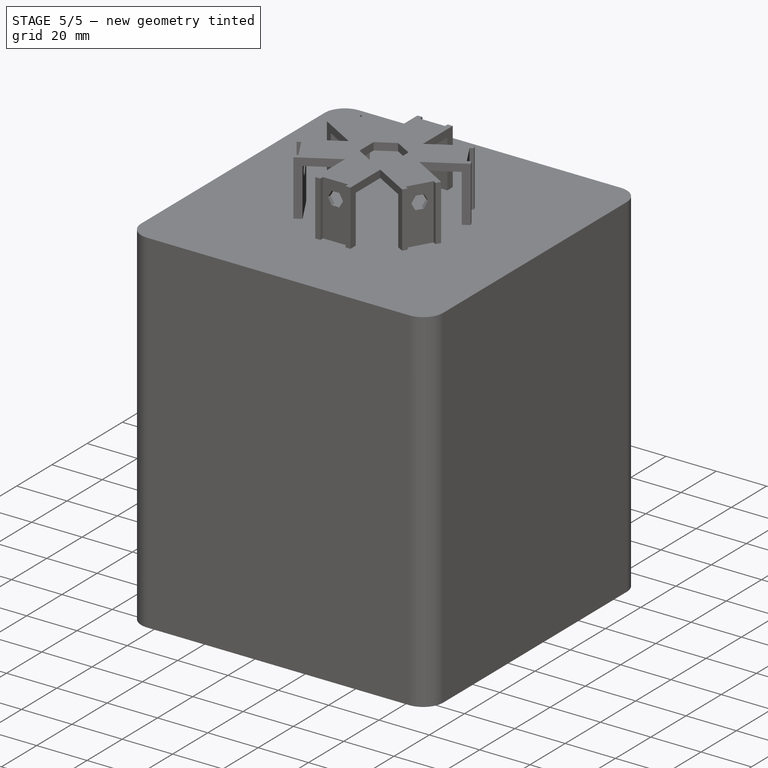
[diagram: stage 5 of 5 — iso view after this stage's code; geometry added in this stage tinted green]
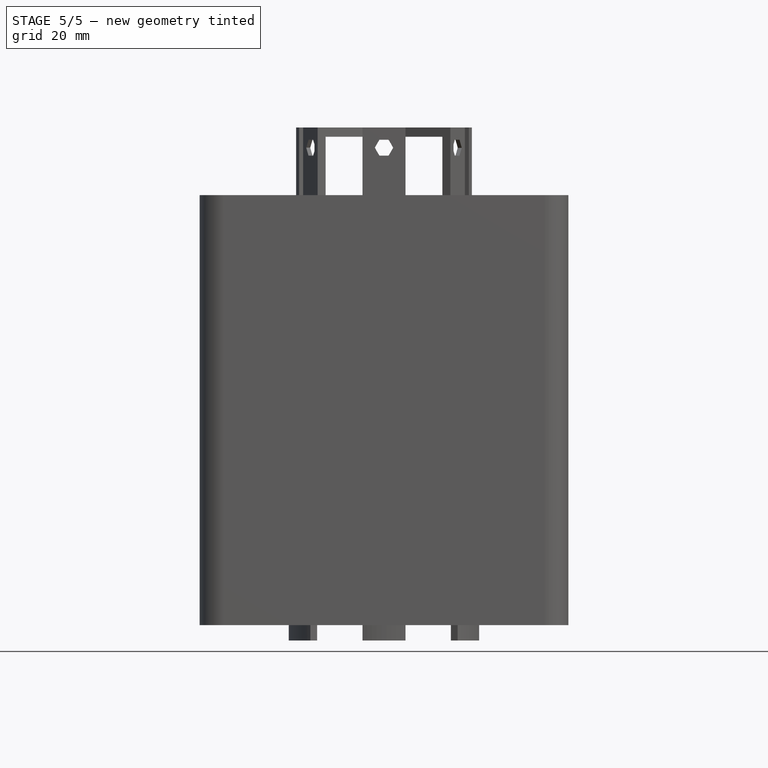
[diagram: stage 5 of 5 — front view after this stage's code; geometry added in this stage tinted green]
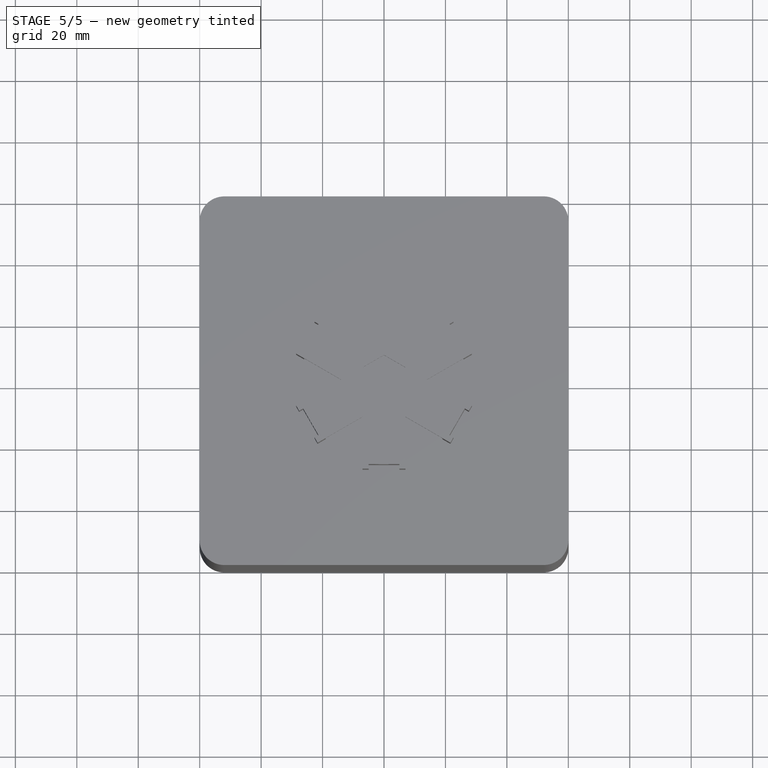
[diagram: stage 5 of 5 — top view after this stage's code; geometry added in this stage tinted green]
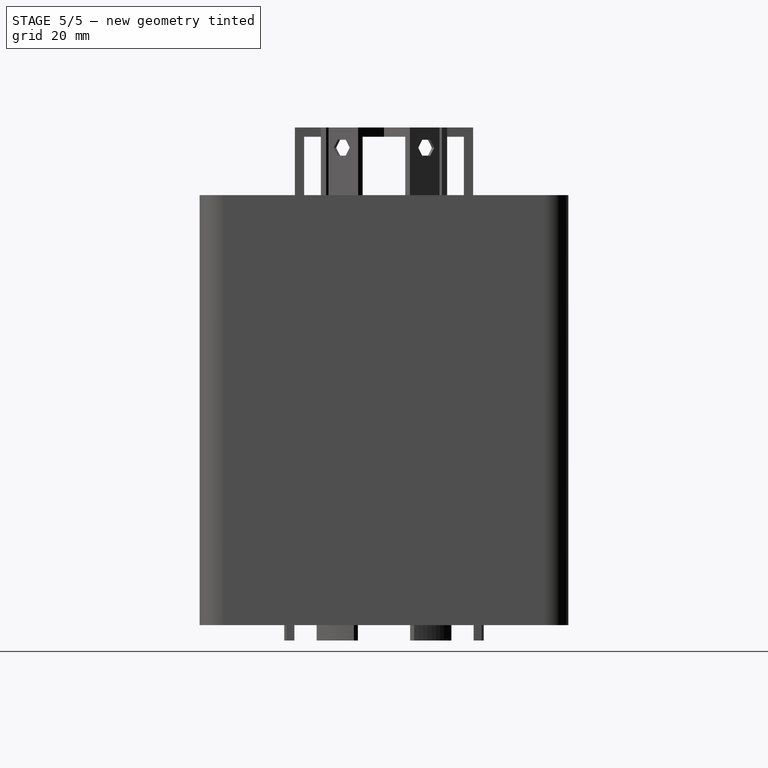
[diagram: stage 5 of 5 — right view after this stage's code; geometry added in this stage tinted green]
FEATURE [Sketcher::SketchObject] Sketch002
  ArcFitTolerance = 1e-06
  AttachmentSupport = -> [Pad001]
  FullyConstrained = true
  MakeInternals = false
  MapMode = 5
  Placement = pos=(0,-60,0) rot=(1,0,0;1.5708rad)
  sketch-geometry (2):
    g0: Circle CenterX=-26.5 CenterY=12.5 CenterZ=0 NormalX=0 NormalY=0 NormalZ=1 AngleXU=0 Radius=5
    g1: Circle CenterX=26.5 CenterY=12.5 CenterZ=0 NormalX=0 NormalY=0 NormalZ=1 AngleXU=0 Radius=5
  constraints (6):
    c: Diameter(g0) = 10
    c: Diameter(g1) = 10
    c: Horizontal(g0,g1)
    c: DistanceX(g0,g1) = 53
    c: DistanceX(g0,g-1) = 26.5
    c: DistanceY(g-1,g0) = 12.5
FEATURE [PartDesign::Pocket] Pocket
  BaseFeature = -> Pad001
  Direction = (0,1,-2e-16)
  Length = 5
  Length2 = 5
  Profile = -> Sketch002
  ReferenceAxis = -> Sketch002 [N_Axis]
  Refine = true
  Suppressed = false
  Type = 0
FEATURE [Sketcher::SketchObject] Sketch006
  ArcFitTolerance = 1e-06
  AttachmentSupport = -> [Pocket]
  ExternalGeometry = -> [Pocket]
  FullyConstrained = true
  MakeInternals = false
  MapMode = 5
  Placement = pos=(0,-58,0) rot=(0,0.707107,0.707107;3.14159rad)
  sketch-geometry (4):
    g0: Circle CenterX=26.5 CenterY=12.5 CenterZ=0 NormalX=0 NormalY=0 NormalZ=1 AngleXU=0 Radius=7.5
    g1: Circle CenterX=-26.5 CenterY=12.5 CenterZ=0 NormalX=0 NormalY=0 NormalZ=1 AngleXU=0 Radius=7.5
    g2: Circle CenterX=-26.5 CenterY=12.5 CenterZ=0 NormalX=0 NormalY=0 NormalZ=1 AngleXU=0 Radius=5
    g3: Circle CenterX=26.5 CenterY=12.5 CenterZ=0 NormalX=0 NormalY=0 NormalZ=1 AngleXU=0 Radius=5
  constraints (8):
    c: Diameter(g0) = 15
    c: Coincident(g0,g-3)
    c: Diameter(g1) = 15
    c: Coincident(g1,g-4)
    c: Coincident(g2,g-4)
    c: Equal(g2,g-4)
    c: Coincident(g3,g-3)
    c: Equal(g3,g-3)
FEATURE [PartDesign::Pad] Pad005
  BaseFeature = -> Pocket
  Direction = (0,1,-2e-16)
  Length = 1
  Length2 = 10
  Profile = -> Sketch006
  ReferenceAxis = -> Sketch006 [N_Axis]
  Refine = true
  Suppressed = false
  Type = 0
FEATURE [PartDesign::Chamfer] Chamfer002
  Angle = 45
  Base = -> Pad005 [Edge84,Edge83,Edge82,Edge81]
  BaseFeature = -> Pad005
  ChamferType = 0
  FlipDirection = false
  Refine = true
  Size = 1
  Size2 = 1
  SupportTransform = false
  Suppressed = false
  UseAllEdges = false
FEATURE [Sketcher::SketchObject] Sketch007
  ArcFitTolerance = 1e-06
  AttachmentSupport = -> [Chamfer002]
  FullyConstrained = true
  MakeInternals = false
  MapMode = 5
  Placement = pos=(0,-58,0) rot=(0,0.707107,0.707107;3.14159rad)
  sketch-geometry (12):
    g0: LineSegment StartX=-15 StartY=16.5 StartZ=0 EndX=-15 EndY=7 EndZ=0
    g1: LineSegment StartX=-14 StartY=6 StartZ=0 EndX=14 EndY=6 EndZ=0
    g2: LineSegment StartX=15 StartY=7 StartZ=0 EndX=15 EndY=16.5 EndZ=0
    g3: LineSegment StartX=14 StartY=17.5 StartZ=0 EndX=-14 EndY=17.5 EndZ=0
    g4: ArcOfCircle CenterX=-14 CenterY=16.5 CenterZ=0 NormalX=0 NormalY=0 NormalZ=1 AngleXU=0 Radius=1 StartAngle=1.5708 EndAngle=3.14159
    g5: GeomPoint [constr] X=-15 Y=17.5 Z=0
    g6: ArcOfCircle CenterX=14 CenterY=16.5 CenterZ=0 NormalX=0 NormalY=0 NormalZ=1 AngleXU=0 Radius=1 StartAngle=1e-15 EndAngle=1.5708
    g7: GeomPoint [constr] X=15 Y=17.5 Z=0
    g8: ArcOfCircle CenterX=14 CenterY=7 CenterZ=0 NormalX=0 NormalY=0 NormalZ=1 AngleXU=0 Radius=1 StartAngle=4.71239 EndAngle=6.28319
    g9: GeomPoint [constr] X=15 Y=6 Z=0
    g10: ArcOfCircle CenterX=-14 CenterY=7 CenterZ=0 NormalX=0 NormalY=0 NormalZ=1 AngleXU=0 Radius=1 StartAngle=3.14159 EndAngle=4.71239
    g11: GeomPoint [constr] X=-15 Y=6 Z=0
  constraints (28):
    c: Vertical(g0)
    c: Vertical(g2)
    c: Horizontal(g1)
    c: Horizontal(g3)
    c: Distance(g5,g7) = 30
    c: Distance(g11,g5) = 11.5
    c: DistanceX(g-1,g9) = 15
    c: DistanceY(g-1,g9) = 6
    c: PointOnObject(g5,g0)
    c: PointOnObject(g5,g3)
    c: Tangent(g0,g4) = -1.5708
    c: Tangent(g3,g4) = -1.5708
    c: PointOnObject(g7,g3)
    c: PointOnObject(g7,g2)
    c: Tangent(g3,g6) = -1.5708
    c: Tangent(g2,g6) = -1.5708
    c: PointOnObject(g9,g2)
    c: PointOnObject(g9,g1)
    c: Tangent(g2,g8) = -1.5708
    c: Tangent(g1,g8) = -1.5708
    c: PointOnObject(g11,g0)
    c: PointOnObject(g11,g1)
    c: Tangent(g0,g10) = -1.5708
    c: Tangent(g1,g10) = -1.5708
    c: Radius(g4) = 1
    c: Equal(g4,g6)
    c: Equal(g6,g8)
    c: Equal(g8,g10)
FEATURE [PartDesign::Pocket] Pocket001
  BaseFeature = -> Chamfer002
  Direction = (0,-1,2e-16)
  Length = 5
  Length2 = 5
  Profile = -> Sketch007
  ReferenceAxis = -> Sketch007 [N_Axis]
  Refine = true
  Suppressed = false
  Type = 0
FEATURE [Sketcher::SketchObject] Sketch008
  ArcFitTolerance = 1e-06
  AttachmentSupport = -> [Pocket001]
  FullyConstrained = true
  MakeInternals = false
  MapMode = 5
  Placement = pos=(0,-58,0) rot=(0,0.707107,0.707107;3.14159rad)
  sketch-geometry (4):
    g0: LineSegment StartX=-18 StartY=21 StartZ=0 EndX=-18 EndY=3 EndZ=0
    g1: LineSegment StartX=-18 StartY=3 StartZ=0 EndX=18 EndY=3 EndZ=0
    g2: LineSegment StartX=18 StartY=3 StartZ=0 EndX=18 EndY=21 EndZ=0
    g3: LineSegment StartX=18 StartY=21 StartZ=0 EndX=-18 EndY=21 EndZ=0
  constraints (12):
    c: Coincident(g0,g1)
    c: Coincident(g1,g2)
    c: Coincident(g2,g3)
    c: Coincident(g3,g0)
    c: Vertical(g0)
    c: Vertical(g2)
    c: Horizontal(g1)
    c: Horizontal(g3)
    c: Distance(g0,g2) = 36
    c: Distance(g1,g3) = 18
    c: DistanceX(g-1,g2) = 18
    c: DistanceY(g-1,g1) = 3
FEATURE [PartDesign::Pocket] Pocket002
  BaseFeature = -> Pocket001
  Direction = (0,-1,2e-16)
  Length = 1
  Length2 = 5
  Profile = -> Sketch008
  ReferenceAxis = -> Sketch008 [N_Axis]
  Refine = true
  Suppressed = false
  Type = 0
FEATURE [Sketcher::SketchObject] Sketch009
  ArcFitTolerance = 1e-06
  AttachmentSupport = -> [Pocket002]
  ExternalGeometry = -> [Pocket002]
  FullyConstrained = true
  MakeInternals = false
  MapMode = 5
  Placement = pos=(0,0,2) rot=(0,0,1;0rad)
  sketch-geometry (4):
    g0: LineSegment StartX=-40.25 StartY=-2.2 StartZ=0 EndX=40.25 EndY=-2.2 EndZ=0
    g1: LineSegment StartX=40.25 StartY=-2.2 StartZ=0 EndX=40.25 EndY=58 EndZ=0
    g2: LineSegment StartX=40.25 StartY=58 StartZ=0 EndX=-40.25 EndY=58 EndZ=0
    g3: LineSegment StartX=-40.25 StartY=58 StartZ=0 EndX=-40.25 EndY=-2.2 EndZ=0
  constraints (12):
    c: Coincident(g0,g1)
    c: Coincident(g1,g2)
    c: Coincident(g2,g3)
    c: Coincident(g3,g0)
    c: Horizontal(g0)
    c: Horizontal(g2)
    c: Vertical(g1)
    c: Vertical(g3)
    c: Distance(g1,g3) = 80.5
    c: Distance(g0,g2) = 60.2
    c: DistanceX(g-1,g0) = 40.25
    c: DistanceY(g1,g-3) = 0
FEATURE [PartDesign::Pocket] Pocket003
  BaseFeature = -> Pocket002
  Direction = (0,0,-1)
  Length = 0.2
  Length2 = 5
  Profile = -> Sketch009
  ReferenceAxis = -> Sketch009 [N_Axis]
  Refine = true
  Suppressed = false
  Type = 0
FEATURE [Sketcher::SketchObject] Sketch010
  ArcFitTolerance = 1e-06
  AttachmentSupport = -> [Pocket003]
  ExternalGeometry = -> [Pocket003]
  FullyConstrained = true
  MakeInternals = false
  MapMode = 5
  Placement = pos=(0,0,1.8) rot=(0,0,1;0rad)
  sketch-geometry (8):
    g0: Circle CenterX=-37.65 CenterY=55 CenterZ=0 NormalX=0 NormalY=0 NormalZ=1 AngleXU=0 Radius=2.1
    g1: Circle CenterX=-37.65 CenterY=55 CenterZ=0 NormalX=0 NormalY=0 NormalZ=1 AngleXU=0 Radius=3.5
    g2: Circle CenterX=37.75 CenterY=55 CenterZ=0 NormalX=0 NormalY=0 NormalZ=1 AngleXU=0 Radius=2.1
    g3: Circle CenterX=37.75 CenterY=55 CenterZ=0 NormalX=0 NormalY=0 NormalZ=1 AngleXU=0 Radius=3.5
    g4: Circle CenterX=-37.65 CenterY=0.8 CenterZ=0 NormalX=0 NormalY=0 NormalZ=1 AngleXU=0 Radius=2.1
    g5: Circle CenterX=-37.65 CenterY=0.8 CenterZ=0 NormalX=0 NormalY=0 NormalZ=1 AngleXU=0 Radius=3.5
    g6: Circle CenterX=37.75 CenterY=0.8 CenterZ=0 NormalX=0 NormalY=0 NormalZ=1 AngleXU=0 Radius=2.1
    g7: Circle CenterX=37.75 CenterY=0.8 CenterZ=0 NormalX=0 NormalY=0 NormalZ=1 AngleXU=0 Radius=3.5
  constraints (20):
    c: Diameter(g0) = 4.2
    c: DistanceX(g-5,g0) = 2.6
    c: DistanceY(g0,g-5) = 2
    c: Diameter(g1) = 7
    c: Coincident(g1,g0)
    c: Diameter(g2) = 4.2
    c: DistanceX(g2,g-5) = 2.5
    c: DistanceY(g2,g-5) = 2
    c: Diameter(g3) = 7
    c: Coincident(g3,g2)
    c: Diameter(g4) = 4.2
    c: DistanceY(g-3,g4) = 3
    c: Vertical(g4,g0)
    c: Diameter(g5) = 7
    c: Coincident(g5,g4)
    c: Diameter(g6) = 4.2
    c: DistanceY(g-6,g6) = 3
    c: Vertical(g2,g6)
    c: Diameter(g7) = 7
    c: Coincident(g7,g6)
FEATURE [PartDesign::Pad] Pad006
  BaseFeature = -> Pocket003
  Direction = (0,0,1)
  Length = 7
  Length2 = 10
  Profile = -> Sketch010
  ReferenceAxis = -> Sketch010 [N_Axis]
  Refine = true
  Suppressed = false
  Type = 0
FEATURE [Sketcher::SketchObject] Sketch011
  ArcFitTolerance = 1e-06
  AttachmentSupport = -> [Pad006]
  FullyConstrained = true
  MakeInternals = false
  MapMode = 5
  Placement = pos=(0,60,0) rot=(0,0.707107,0.707107;3.14159rad)
  sketch-geometry (8):
    g0: ArcOfCircle CenterX=-28.95 CenterY=13.8 CenterZ=0 NormalX=0 NormalY=0 NormalZ=1 AngleXU=0 Radius=3.3 StartAngle=1.5708 EndAngle=4.71239
    g1: ArcOfCircle CenterX=-20.95 CenterY=13.8 CenterZ=0 NormalX=0 NormalY=0 NormalZ=1 AngleXU=0 Radius=3.3 StartAngle=4.71239 EndAngle=7.85398
    g2: LineSegment StartX=-28.95 StartY=17.1 StartZ=0 EndX=-20.95 EndY=17.1 EndZ=0
    g3: LineSegment StartX=-28.95 StartY=10.5 StartZ=0 EndX=-20.95 EndY=10.5 EndZ=0
    g4: ArcOfCircle CenterX=19.05 CenterY=13.2 CenterZ=0 NormalX=0 NormalY=0 NormalZ=1 AngleXU=0 Radius=3.3 StartAngle=1.5708 EndAngle=4.71239
    g5: ArcOfCircle CenterX=27.05 CenterY=13.2 CenterZ=0 NormalX=0 NormalY=0 NormalZ=1 AngleXU=0 Radius=3.3 StartAngle=4.71239 EndAngle=7.85398
    g6: LineSegment StartX=19.05 StartY=16.5 StartZ=0 EndX=27.05 EndY=16.5 EndZ=0
    g7: LineSegment StartX=19.05 StartY=9.9 StartZ=0 EndX=27.05 EndY=9.9 EndZ=0
  constraints (20):
    c: Tangent(g0,g2) = 1.5708
    c: Tangent(g0,g3) = -1.5708
    c: Tangent(g1,g2) = 1.5708
    c: Tangent(g1,g3) = -1.5708
    c: Equal(g0,g1)
    c: Horizontal(g3)
    c: Distance(g0,g1) = 8
    c: Radius(g0) = 3.3
    c: DistanceX(g-3,g0) = 8.8
    c: DistanceY(g-3,g0) = 5
    c: Tangent(g4,g6) = 1.5708
    c: Tangent(g4,g7) = -1.5708
    c: Tangent(g5,g6) = 1.5708
    c: Tangent(g5,g7) = -1.5708
    c: Equal(g4,g5)
    c: Horizontal(g7)
    c: Distance(g4,g5) = 8
    c: Radius(g4) = 3.3
    c: DistanceX(g1,g4) = 40
    c: DistanceY(g1,g4) = -0.6
FEATURE [PartDesign::Pocket] Pocket004
  BaseFeature = -> Pad006
  Direction = (0,-1,2e-16)
  Length = 5
  Length2 = 5
  Profile = -> Sketch011
  ReferenceAxis = -> Sketch011 [N_Axis]
  Refine = true
  Suppressed = false
  Type = 0
FEATURE [PartDesign::Chamfer] Chamfer
  Angle = 45
  Base = -> Pocket004 [Edge254,Edge252,Edge253,Edge255]
  BaseFeature = -> Pocket004
  ChamferType = 0
  FlipDirection = false
  Refine = true
  Size = 1
  Size2 = 1
  SupportTransform = false
  Suppressed = false
  UseAllEdges = false
FEATURE [PartDesign::Chamfer] Chamfer003
  Angle = 45
  Base = -> Chamfer [Edge11,Edge10,Edge9,Edge12]
  BaseFeature = -> Chamfer
  ChamferType = 0
  FlipDirection = false
  Refine = true
  Size = 1
  Size2 = 1
  SupportTransform = false
  Suppressed = false
  UseAllEdges = false
FEATURE [Spreadsheet::Sheet] Spreadsheet
  cells = A1='baseHeight; B1='neopixelLength; C1='neopixelWidth; A2(baseHeight)==40 mm; B2(neopixelLength)==16 mm; C2(neopixelWidth)==10 mm
FEATURE [Sketcher::SketchObject] Sketch012
  ArcFitTolerance = 1e-06
  AttachmentSupport = -> [Chamfer003]
  ExternalGeometry = -> [Chamfer003]
  FullyConstrained = true
  MakeInternals = false
  MapMode = 5
  Placement = pos=(0,0,2) rot=(0,0,1;0rad)
  sketch-geometry (8):
    g0: Circle CenterX=-52 CenterY=52 CenterZ=0 NormalX=0 NormalY=0 NormalZ=1 AngleXU=0 Radius=2.05
    g1: Circle CenterX=-52 CenterY=52 CenterZ=0 NormalX=0 NormalY=0 NormalZ=1 AngleXU=0 Radius=3.5
    g2: Circle CenterX=52 CenterY=52 CenterZ=0 NormalX=0 NormalY=0 NormalZ=1 AngleXU=0 Radius=2.05
    g3: Circle CenterX=52 CenterY=52 CenterZ=0 NormalX=0 NormalY=0 NormalZ=1 AngleXU=0 Radius=3.5
    g4: Circle CenterX=52 CenterY=-52 CenterZ=0 NormalX=0 NormalY=0 NormalZ=1 AngleXU=0 Radius=2.05
    g5: Circle CenterX=52 CenterY=-52 CenterZ=0 NormalX=0 NormalY=0 NormalZ=1 AngleXU=0 Radius=3.5
    g6: Circle CenterX=-52 CenterY=-52 CenterZ=0 NormalX=0 NormalY=0 NormalZ=1 AngleXU=0 Radius=2.05
    g7: Circle CenterX=-52 CenterY=-52 CenterZ=0 NormalX=0 NormalY=0 NormalZ=1 AngleXU=0 Radius=3.5
  constraints (20):
    c: Diameter(g0) = 4.1
    c: Coincident(g1,g0)
    c: Diameter(g1) = 7
    c: Vertical(g-3,g0)
    c: Horizontal(g0,g-4)
    c: Diameter(g2) = 4.1
    c: Coincident(g3,g2)
    c: Equal(g3,g1)
    c: Vertical(g2,g-3)
    c: Horizontal(g2,g-5)
    c: Diameter(g4) = 4.1
    c: Coincident(g5,g4)
    c: Equal(g5,g3)
    c: Vertical(g4,g-6)
    c: Horizontal(g4,g-5)
    c: Diameter(g6) = 4.1
    c: Coincident(g7,g6)
    c: Equal(g7,g1)
    c: Vertical(g6,g-6)
    c: Horizontal(g6,g-4)
FEATURE [PartDesign::Pad] Pad007
  BaseFeature = -> Chamfer003
  Direction = (0,0,1)
  Length = 36
  Length2 = 10
  Profile = -> Sketch012
  ReferenceAxis = -> Sketch012 [N_Axis]
  Refine = true
  Suppressed = false
  Type = 0
  expr: Length = Spreadsheet.baseHeight - 4 mm
FEATURE [Sketcher::SketchObject] Sketch013
  ArcFitTolerance = 1e-06
  AttachmentSupport = -> [Pad007]
  FullyConstrained = false
  MakeInternals = false
  MapMode = 5
  Placement = pos=(0,0,2) rot=(0,0,1;0rad)
  sketch-geometry (4):
    g0: LineSegment StartX=-55.1416 StartY=52.5894 StartZ=0 EndX=-58.0134 EndY=55.4611 EndZ=0
    g1: LineSegment StartX=-58.0134 StartY=55.4611 StartZ=0 EndX=-55.3412 EndY=58.1334 EndZ=0
    g2: LineSegment StartX=-55.3412 StartY=58.1334 StartZ=0 EndX=-52.4694 EndY=55.2616 EndZ=0
    g3: LineSegment StartX=-52.4694 StartY=55.2616 StartZ=0 EndX=-55.1416 EndY=52.5894 EndZ=0
  constraints (8):
    c: Coincident(g0,g1)
    c: Coincident(g1,g2)
    c: Coincident(g2,g3)
    c: Coincident(g3,g0)
    c: Angle(g3,g0) = 1.5708
    c: Angle(g2,g3) = 1.5708
    c: Equal(g1,g3)
    c: Angle(g0,g-2) = 2.35619
FEATURE [PartDesign::Pad] Pad008
  BaseFeature = -> Pad007
  Direction = (0,0,1)
  Length = 36
  Length2 = 10
  Profile = -> Sketch013
  ReferenceAxis = -> Sketch013 [N_Axis]
  Refine = true
  Suppressed = false
  Type = 0
  expr: Length = Spreadsheet.baseHeight - 4 mm
FEATURE [PartDesign::PolarPattern] PolarPattern
  Angle = 360
  Axis = -> Sketch013 [N_Axis]
  BaseFeature = -> Pad008
  Mode = 0
  Occurrences = 4
  Offset = 120
  Originals = -> [Pad008]
  Refine = true
  Suppressed = false
  TransformMode = 0
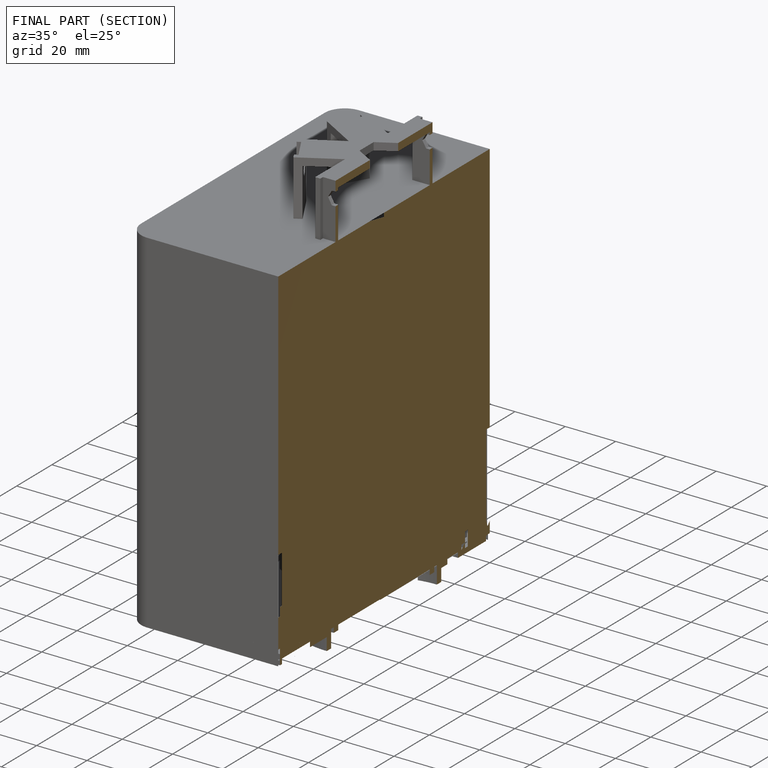
[diagram: finished part — half-section view (interior)]
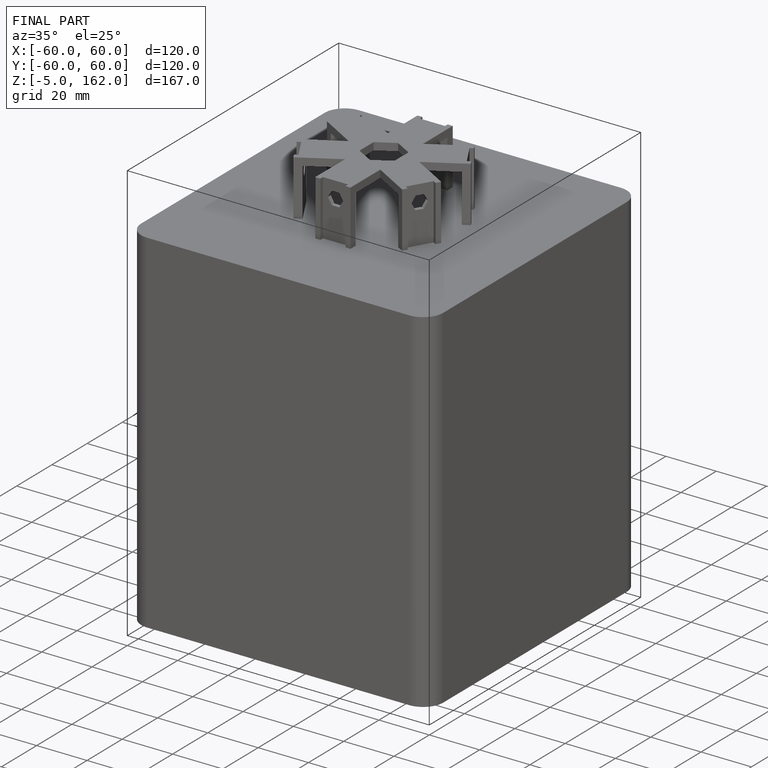
[diagram: finished part — iso view with bounding-box wireframe]
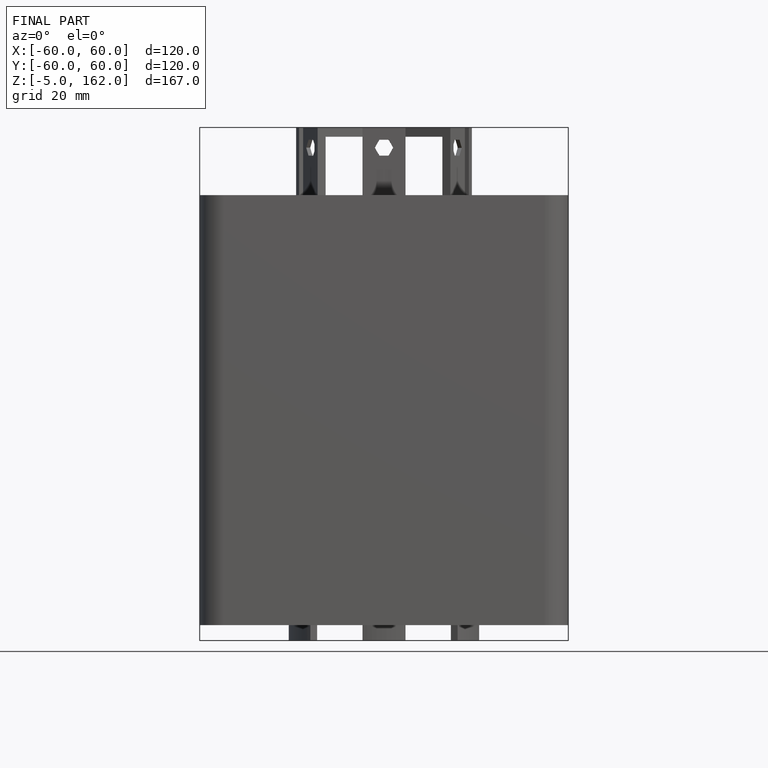
[diagram: finished part — front view with bounding-box wireframe]
